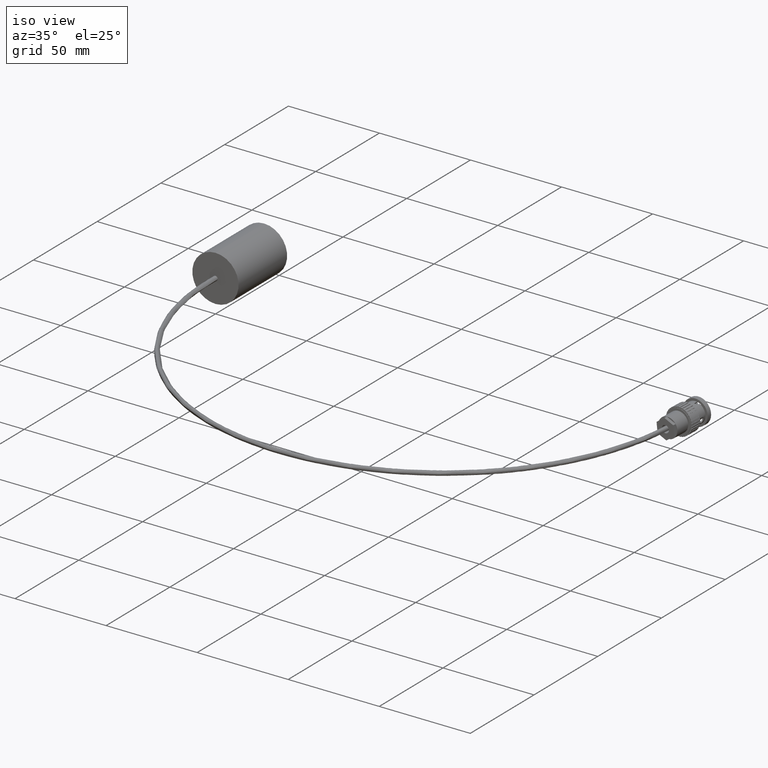
[diagram: clean part render]
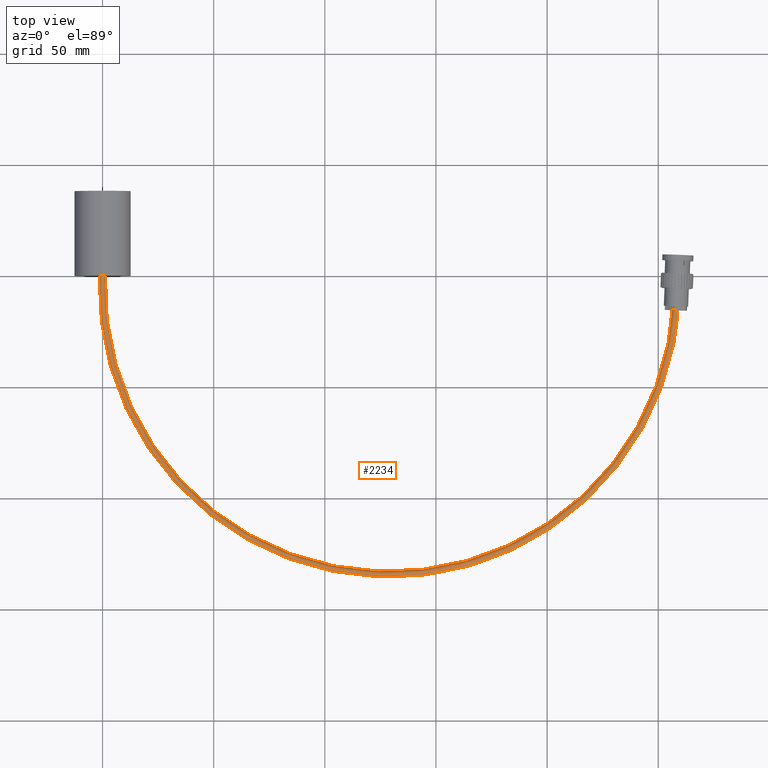
[diagram: tour spotlight — one face highlighted and labeled with its STEP entity id]
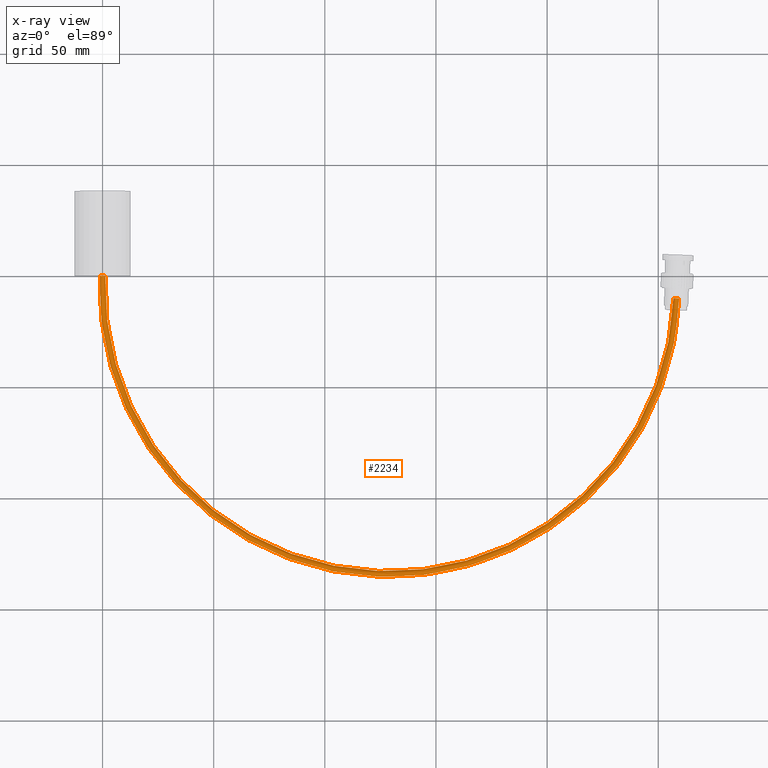
[diagram: x-ray of the same camera — body ghosted, this tour face saturated]
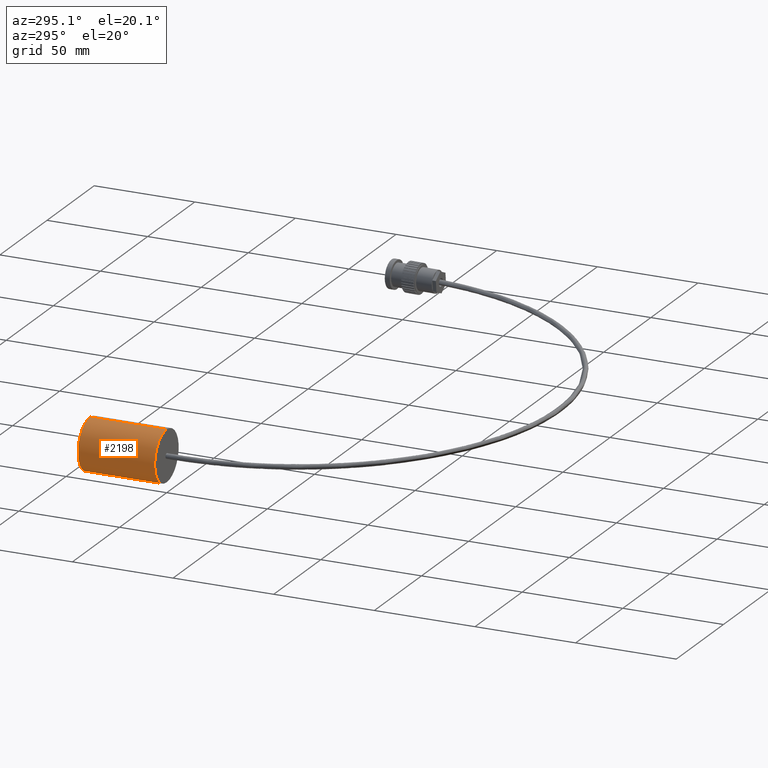
[diagram: tour spotlight — one face highlighted and labeled with its STEP entity id]
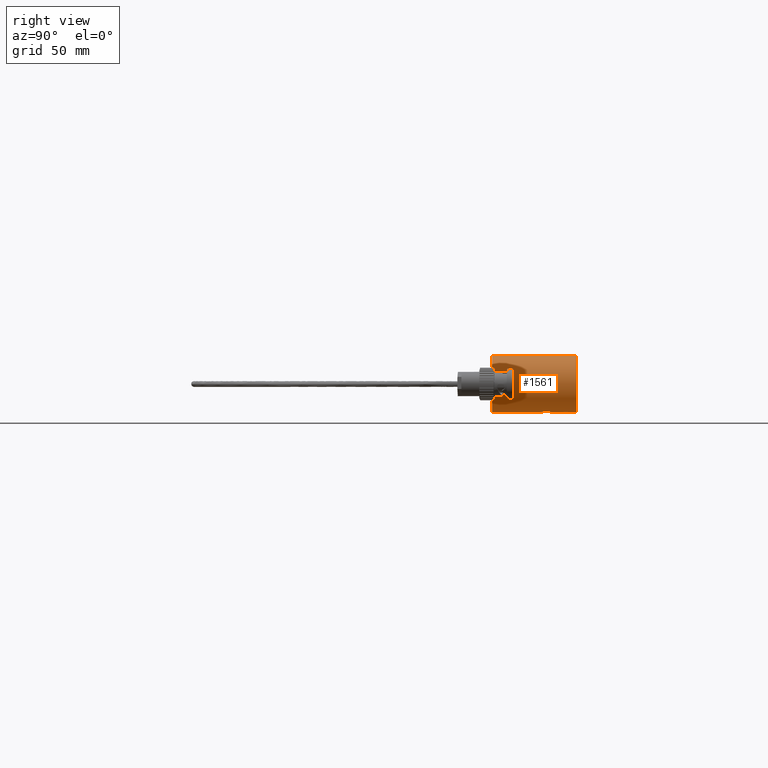
[diagram: tour spotlight — one face highlighted and labeled with its STEP entity id]
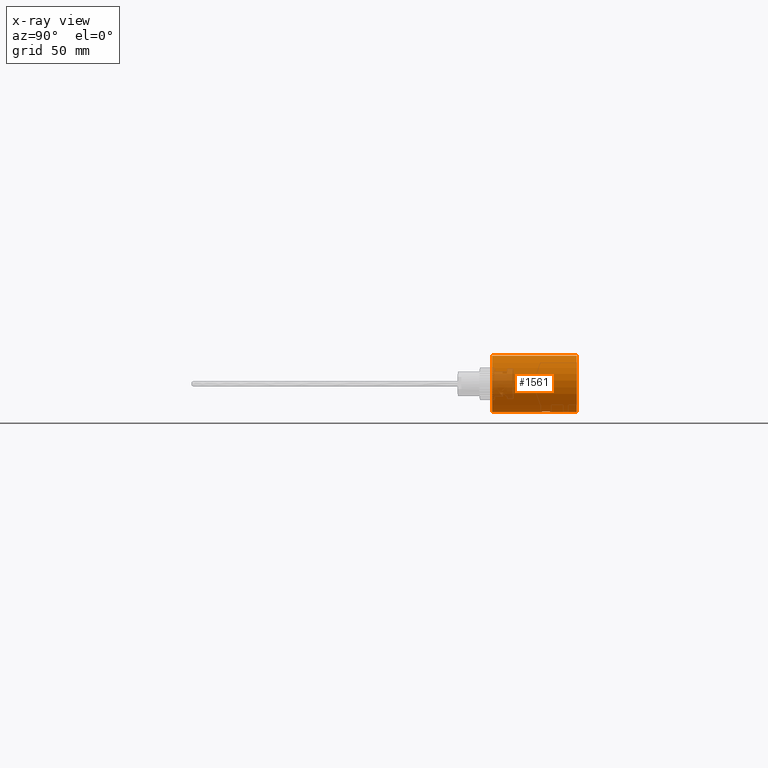
[diagram: x-ray of the same camera — body ghosted, this tour face saturated]
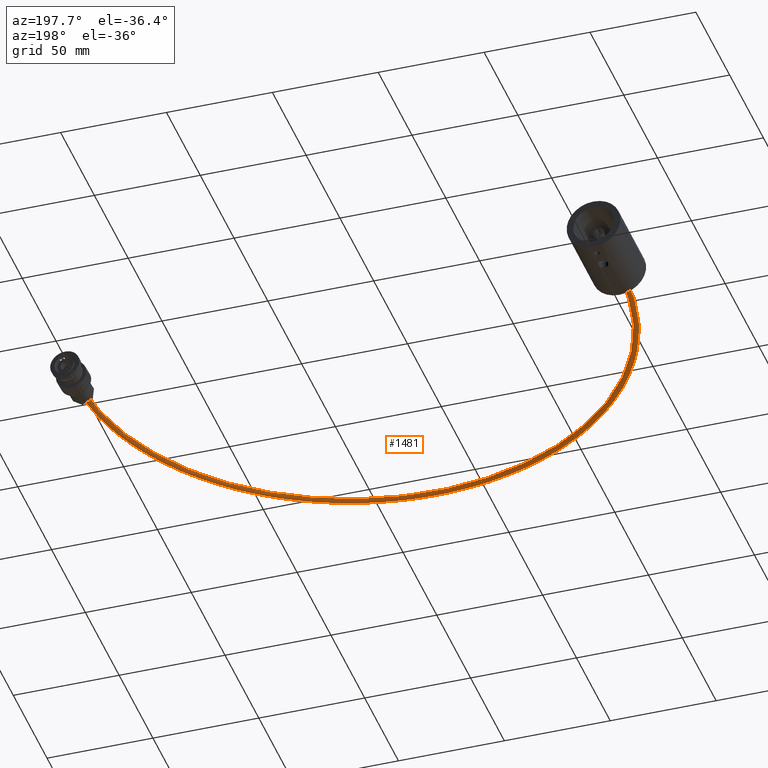
[diagram: tour spotlight — one face highlighted and labeled with its STEP entity id]
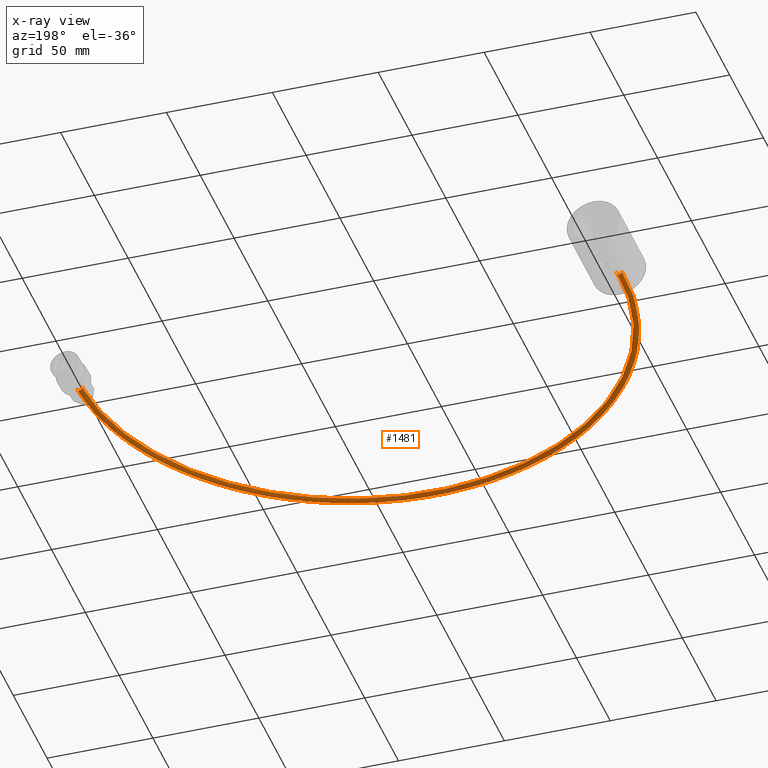
[diagram: x-ray of the same camera — body ghosted, this tour face saturated]
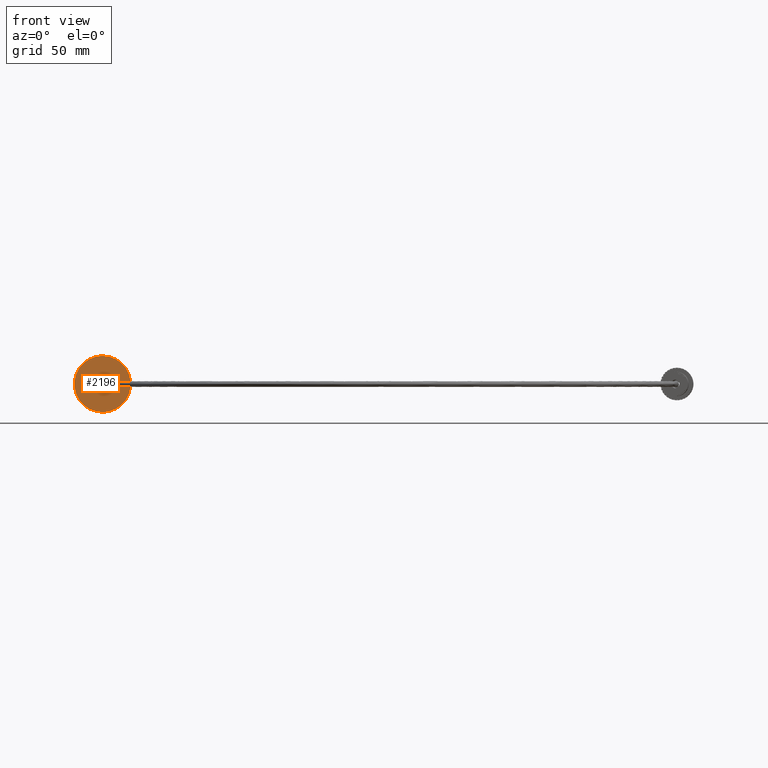
[diagram: tour spotlight — one face highlighted and labeled with its STEP entity id]
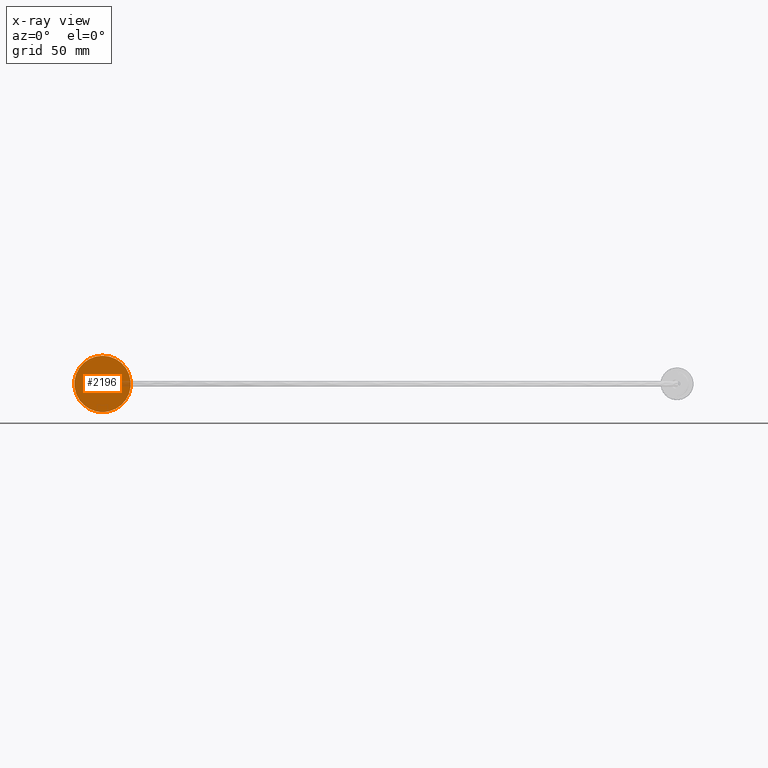
[diagram: x-ray of the same camera — body ghosted, this tour face saturated]
A machine part: a face-by-face anatomy tour. The part has 348 B-rep faces; the first image is the clean iso view, then the 5 largest visible faces are spotlighted one at a time (largest first), each with its STEP entity span.

Face 1 — top view, entity #2234. An x-ray twin of the same camera follows (body ghosted, this face saturated) — the face is partly hidden behind the body. In plain terms, the highlighted face is a freeform B-spline surface patch.
Definition (entity closure, byte-faithful):
#1096 = FACE_OUTER_BOUND ( 'NONE', #9802, .T. ) ;
#1222 = AXIS2_PLACEMENT_3D ( 'NONE', #7463, #7462, #7461 ) ;
#1851 = CARTESIAN_POINT ( 'NONE',  ( -3.689970169806873500E-014, 1.213184216936841500E-031, 0.05000000000000000300 ) ) ;
#1853 = CARTESIAN_POINT ( 'NONE',  ( 10.21184235773133200, -0.3992545633185433700, 0.0000000000000000000 ) ) ;
#1863 = CARTESIAN_POINT ( 'NONE',  ( 10.11191869981899100, -0.3953478269033676700, -6.123233995736788700E-018 ) ) ;
#1867 = CARTESIAN_POINT ( 'NONE',  ( 0.04996182895616743700, -0.001953368207589857700, -6.123233995736788700E-018 ) ) ;
#2234 = ADVANCED_FACE ( 'NONE', ( #1096 ), #8591, .T. ) ;
#2907 = CARTESIAN_POINT ( 'NONE',  ( 0.04996182895616797800, -0.001953368207590107000, -1.005323956158381300E-015 ) ) ;
#3709 = ORIENTED_EDGE ( 'NONE', *, *, #4008, .T. ) ;
#3713 = ORIENTED_EDGE ( 'NONE', *, *, #4049, .F. ) ;
#3717 = ORIENTED_EDGE ( 'NONE', *, *, #3963, .T. ) ;
#3719 = ORIENTED_EDGE ( 'NONE', *, *, #4007, .T. ) ;
#3782 = ORIENTED_EDGE ( 'NONE', *, *, #4009, .T. ) ;
#3963 = EDGE_CURVE ( 'NONE', #6196, #9923, #10295, .T. ) ;
#4007 = EDGE_CURVE ( 'NONE', #9921, #6196, #8545, .T. ) ;
#4008 = EDGE_CURVE ( 'NONE', #9937, #9921, #8587, .T. ) ;
#4009 = EDGE_CURVE ( 'NONE', #9923, #9933, #8560, .T. ) ;
#4049 = EDGE_CURVE ( 'NONE', #9937, #9933, #6914, .T. ) ;
#4193 = CARTESIAN_POINT ( 'NONE',  ( 10.13124422385636300, -0.3961034010094055000, 0.04004410684354360600 ) ) ;
#4195 = CARTESIAN_POINT ( 'NONE',  ( 10.13675244956736400, -0.3963187572765575200, 0.04370940683139485500 ) ) ;
#4196 = CARTESIAN_POINT ( 'NONE',  ( 10.21184235773133200, -0.3992545633185433700, 0.0000000000000000000 ) ) ;
#4200 = CARTESIAN_POINT ( 'NONE',  ( 10.12191195038458200, -0.3957385351370955000, 0.03071838566602326900 ) ) ;
#4203 = CARTESIAN_POINT ( 'NONE',  ( 10.14884971689403100, -0.3967917266991810000, 0.04871176631965182200 ) ) ;
#4204 = CARTESIAN_POINT ( 'NONE',  ( 10.19259918682006800, -0.3985022089901174000, 0.03996839096293985900 ) ) ;
#4205 = CARTESIAN_POINT ( 'NONE',  ( 10.18702611231907600, -0.3982843173160896500, 0.04369371960717231800 ) ) ;
#4209 = CARTESIAN_POINT ( 'NONE',  ( 10.19951280318846900, -0.3987725121134346700, 0.03304973244076160600 ) ) ;
#4212 = CARTESIAN_POINT ( 'NONE',  ( 10.21184235773133200, -0.3992545633185442500, 0.006605876149495982500 ) ) ;
#4214 = CARTESIAN_POINT ( 'NONE',  ( 10.11191869981899100, -0.3953478269033677300, 0.006605876149496099600 ) ) ;
#4215 = CARTESIAN_POINT ( 'NONE',  ( 10.20524774945981200, -0.3989967325223493500, 0.02504164073028235900 ) ) ;
#4217 = CARTESIAN_POINT ( 'NONE',  ( 10.16843022623807300, -0.3975572700197541600, 0.04999558216815964300 ) ) ;
#4220 = CARTESIAN_POINT ( 'NONE',  ( 10.17500404069510700, -0.3978142878357796600, 0.04868180568638949500 ) ) ;
#4221 = CARTESIAN_POINT ( 'NONE',  ( 10.20678208413882600, -0.3990567207302351300, 0.02216996442717281800 ) ) ;
#4223 = CARTESIAN_POINT ( 'NONE',  ( 10.11191869981899100, -0.3953478269033676700, -6.123233995736788700E-018 ) ) ;
#4226 = CARTESIAN_POINT ( 'NONE',  ( 10.11824258299714300, -0.3955950731032523700, 0.02521577510486263500 ) ) ;
#4227 = CARTESIAN_POINT ( 'NONE',  ( 10.11322046441740400, -0.3953987222695586900, 0.01309943555867122000 ) ) ;
#4228 = CARTESIAN_POINT ( 'NONE',  ( 10.21054305709933300, -0.3992037642865690100, 0.01308793473181327600 ) ) ;
#4229 = CARTESIAN_POINT ( 'NONE',  ( 10.15539835330318900, -0.3970477601237362700, 0.05000439500089588800 ) ) ;
#4247 = CARTESIAN_POINT ( 'NONE',  ( 10.20162276960965300, -0.3988550059174512100, 0.03047645669890766000 ) ) ;
#5801 = CARTESIAN_POINT ( 'NONE',  ( 10.21184235773133200, -0.3992545633185443100, 0.0000000000000000000 ) ) ;
#5802 = CARTESIAN_POINT ( 'NONE',  ( 9.810634426205201200, -10.66105875000604500, 0.0000000000000000000 ) ) ;
#5803 = CARTESIAN_POINT ( 'NONE',  ( -0.4511697604823016200, -10.25985081847991700, 0.0000000000000000000 ) ) ;
#5804 = CARTESIAN_POINT ( 'NONE',  ( -0.04996182895617234900, 0.001953368207585599300, 0.0000000000000000000 ) ) ;
#5805 = CARTESIAN_POINT ( 'NONE',  ( 10.21184235773133200, -0.3992545633185443100, 0.1000000000000023200 ) ) ;
#5806 = CARTESIAN_POINT ( 'NONE',  ( 9.810634426205201200, -10.66105875000604500, 0.1000000000000023200 ) ) ;
#5808 = CARTESIAN_POINT ( 'NONE',  ( -0.4511697604823016200, -10.25985081847991700, 0.1000000000000023200 ) ) ;
#5809 = CARTESIAN_POINT ( 'NONE',  ( -0.04996182895617234900, 0.001953368207585599300, 0.1000000000000023200 ) ) ;
#5810 = CARTESIAN_POINT ( 'NONE',  ( 10.11191869981899000, -0.3953478269033685000, 0.1000000000000013200 ) ) ;
#5811 = CARTESIAN_POINT ( 'NONE',  ( 9.718524241123212400, -10.45730469776618700, 0.1000000000000013200 ) ) ;
#5812 = CARTESIAN_POINT ( 'NONE',  ( -0.3434326297396076400, -10.06391023907040800, 0.1000000000000013200 ) ) ;
#5813 = CARTESIAN_POINT ( 'NONE',  ( 0.04996182895616998300, -0.001953368207590185100, 0.1000000000000013200 ) ) ;
#5814 = CARTESIAN_POINT ( 'NONE',  ( 10.11191869981899100, -0.3953478269033685600, -1.005323956158381300E-015 ) ) ;
#5815 = CARTESIAN_POINT ( 'NONE',  ( 9.718524241123212400, -10.45730469776619200, -1.005323956158381300E-015 ) ) ;
#5817 = CARTESIAN_POINT ( 'NONE',  ( -0.3434326297396098100, -10.06391023907041000, -1.005323956158381300E-015 ) ) ;
#6196 = VERTEX_POINT ( 'NONE', #9244 ) ;
#6565 = AXIS2_PLACEMENT_3D ( 'NONE', #10698, #10699, #10700 ) ;
#6914 = CIRCLE ( 'NONE', #6565, 5.034822123750653400 ) ;
#7461 = DIRECTION ( 'NONE',  ( 1.000000000000000000, 0.0000000000000000000, 0.0000000000000000000 ) ) ;
#7462 = DIRECTION ( 'NONE',  ( 0.0000000000000000000, 0.0000000000000000000, 1.000000000000000000 ) ) ;
#7463 = CARTESIAN_POINT ( 'NONE',  ( 5.080940264387579400, -0.1986505975554790400, 0.0000000000000000000 ) ) ;
#8545 = B_SPLINE_CURVE_WITH_KNOTS ( 'NONE', 3,
 ( #8864, #8884, #8871, #8863, #8861, #8860, #8859, #8857, #8856, #8854, #8853, #8851 ),
 .UNSPECIFIED., .F., .F.,
 ( 4, 2, 2, 2, 2, 4 ),
 ( -0.001984719578268271200, -0.001488539683701203600, -0.001240449736417669700, -0.0009923597891341358100, -0.0004961798945670680100, 0.0000000000000000000 ),
 .UNSPECIFIED. ) ;
#8560 = B_SPLINE_CURVE_WITH_KNOTS ( 'NONE', 3,
 ( #4196, #4212, #4228, #4221, #4215, #4247, #4209, #4204, #4205, #4220, #4217, #4229, #4203, #4195, #4193, #4200, #4226, #4227, #4214, #4223 ),
 .UNSPECIFIED., .F., .F.,
 ( 4, 2, 2, 2, 2, 2, 2, 2, 2, 4 ),
 ( 0.003969785577516006400, 0.004466008774705561500, 0.004714120373300306900, 0.004962231971895052400, 0.005458455169084544200, 0.005954678366274035100, 0.006450901563463526000, 0.006947124760653017800, 0.007443347957842509600, 0.007939571155032000600 ),
 .UNSPECIFIED. ) ;
#8587 = B_SPLINE_CURVE_WITH_KNOTS ( 'NONE', 3,
 ( #8870, #8877, #8846, #8845, #8844, #8842, #8841, #8840, #8838, #8837, #8835, #8834 ),
 .UNSPECIFIED., .F., .F.,
 ( 4, 2, 2, 2, 2, 4 ),
 ( 0.001983942317850127100, 0.002479927897312619400, 0.002727920687043865800, 0.002975913476775112200, 0.003471899056237604500, 0.003967884635700097200 ),
 .UNSPECIFIED. ) ;
#8591 =( BOUNDED_SURFACE ( )  B_SPLINE_SURFACE ( 3, 3, ( 
 ( #2907, #5817, #5815, #5814 ),
 ( #5813, #5812, #5811, #5810 ),
 ( #5809, #5808, #5806, #5805 ),
 ( #5804, #5803, #5802, #5801 ) ),
 .UNSPECIFIED., .F., .F., .F. ) 
 B_SPLINE_SURFACE_WITH_KNOTS ( ( 4, 4 ),
 ( 4, 4 ),
 ( 0.0000000000000000000, 1.000000000000000000 ),
 ( 0.0000000000000000000, 1.000000000000000000 ),
 .UNSPECIFIED. ) 
 GEOMETRIC_REPRESENTATION_ITEM ( )  RATIONAL_B_SPLINE_SURFACE ( (
 ( 1.000000000000000000, 0.3333333333333334300, 0.3333333333333334300, 1.000000000000000000),
 ( 0.3333333333333267100, 0.1111111111111089400, 0.1111111111111089400, 0.3333333333333267100),
 ( 0.3333333333333267100, 0.1111111111111089400, 0.1111111111111089400, 0.3333333333333267100),
 ( 1.000000000000000000, 0.3333333333333334300, 0.3333333333333334300, 1.000000000000000000) ) ) 
 REPRESENTATION_ITEM ( '' )  SURFACE ( )  );
#8834 = CARTESIAN_POINT ( 'NONE',  ( -3.689970169806873500E-014, 1.213184216936841500E-031, 0.05000000000000000300 ) ) ;
#8835 = CARTESIAN_POINT ( 'NONE',  ( 0.006597672260131861100, -0.0002579505896075873700, 0.05000000000000848900 ) ) ;
#8837 = CARTESIAN_POINT ( 'NONE',  ( 0.01315368092467612800, -0.0005142722487934665900, 0.04867323482785110300 ) ) ;
#8838 = CARTESIAN_POINT ( 'NONE',  ( 0.02516721974780649800, -0.0009839681203819986400, 0.04368077887726824800 ) ) ;
#8840 = CARTESIAN_POINT ( 'NONE',  ( 0.03073573170077791700, -0.001201681411503735600, 0.03995475612073524900 ) ) ;
#8841 = CARTESIAN_POINT ( 'NONE',  ( 0.03764359769444963100, -0.001471759711202356600, 0.03303666781754554400 ) ) ;
#8842 = CARTESIAN_POINT ( 'NONE',  ( 0.03975172471688592800, -0.001554181599856461600, 0.03046389063484404900 ) ) ;
#8844 = CARTESIAN_POINT ( 'NONE',  ( 0.04337335580146741600, -0.001695777277357370900, 0.02503078258802644800 ) ) ;
#8845 = CARTESIAN_POINT ( 'NONE',  ( 0.04490629935936416700, -0.001755711096286392100, 0.02216011734622811200 ) ) ;
#8846 = CARTESIAN_POINT ( 'NONE',  ( 0.04866384370164521900, -0.001902620603207216000, 0.01308153387959971200 ) ) ;
#8851 = CARTESIAN_POINT ( 'NONE',  ( -0.05003782781375295400, -1.434220196673738200E-015, 0.0000000000000000000 ) ) ;
#8853 = CARTESIAN_POINT ( 'NONE',  ( -0.05003782770462714800, -1.434220196673738400E-015, 0.006605328942337134300 ) ) ;
#8854 = CARTESIAN_POINT ( 'NONE',  ( -0.04870896172209734200, -8.195543980992793600E-016, 0.01316867915984429000 ) ) ;
#8856 = CARTESIAN_POINT ( 'NONE',  ( -0.04370980947597225000, -8.195543980992790600E-016, 0.02519392691144870700 ) ) ;
#8857 = CARTESIAN_POINT ( 'NONE',  ( -0.03997933257881723700, -4.609993489308442100E-016, 0.03076667479901628800 ) ) ;
#8859 = CARTESIAN_POINT ( 'NONE',  ( -0.03305448466909486500, -4.609993489308445000E-016, 0.03767872832769205600 ) ) ;
#8860 = CARTESIAN_POINT ( 'NONE',  ( -0.03047942104906812400, 5.122214988120497200E-017, 0.03978786154097169200 ) ) ;
#8861 = CARTESIAN_POINT ( 'NONE',  ( -0.02504263635440175500, 5.122214988120487400E-017, 0.04341057960951389500 ) ) ;
#8863 = CARTESIAN_POINT ( 'NONE',  ( -0.02217016109395995200, 1.485442346554943200E-015, 0.04494390988193307900 ) ) ;
#8864 = CARTESIAN_POINT ( 'NONE',  ( -3.689970169806873500E-014, 1.213184216936841500E-031, 0.05000000000000000300 ) ) ;
#8870 = CARTESIAN_POINT ( 'NONE',  ( 0.04996182895616743700, -0.001953368207589857700, -6.123233995736788700E-018 ) ) ;
#8871 = CARTESIAN_POINT ( 'NONE',  ( -0.01308627931434669600, 1.485442346554943200E-015, 0.04870222279310604900 ) ) ;
#8877 = CARTESIAN_POINT ( 'NONE',  ( 0.04996182895616759600, -0.001953368207589597900, 0.006602712909073462500 ) ) ;
#8884 = CARTESIAN_POINT ( 'NONE',  ( -0.006605186544468007900, 3.073328992872297800E-016, 0.04999999999999180800 ) ) ;
#9244 = CARTESIAN_POINT ( 'NONE',  ( -0.05003782781375295400, -1.434220196673738200E-015, 0.0000000000000000000 ) ) ;
#9802 = EDGE_LOOP ( 'NONE', ( #3713, #3709, #3719, #3717, #3782 ) ) ;
#9921 = VERTEX_POINT ( 'NONE', #1851 ) ;
#9923 = VERTEX_POINT ( 'NONE', #1853 ) ;
#9933 = VERTEX_POINT ( 'NONE', #1863 ) ;
#9937 = VERTEX_POINT ( 'NONE', #1867 ) ;
#10295 = CIRCLE ( 'NONE', #1222, 5.134822123750653100 ) ;
#10698 = CARTESIAN_POINT ( 'NONE',  ( 5.080940264387579400, -0.1986505975554790400, -6.123233995736788700E-018 ) ) ;
#10699 = DIRECTION ( 'NONE',  ( 0.0000000000000000000, 0.0000000000000000000, 1.000000000000000000 ) ) ;
#10700 = DIRECTION ( 'NONE',  ( 1.000000000000000000, 0.0000000000000000000, 0.0000000000000000000 ) ) ;

Face 2 — auxiliary view, entity #2198. In plain terms, the highlighted cylindrical surface (edge-blend (fillet) strip) has radius 12.7 mm, axis along (-0, -1, -0).
Definition (entity closure, byte-faithful):
#1143 = AXIS2_PLACEMENT_3D ( 'NONE', #2857, #2859, #2867 ) ;
#1819 = CARTESIAN_POINT ( 'NONE',  ( 0.0000000000000000000, 0.8535241775174051700, -0.5000000000000000000 ) ) ;
#1821 = CARTESIAN_POINT ( 'NONE',  ( 6.123233995736766000E-017, 1.500000000000000200, 0.5000000000000000000 ) ) ;
#1824 = CARTESIAN_POINT ( 'NONE',  ( 0.0000000000000000000, 0.0000000000000000000, -0.5000000000000000000 ) ) ;
#1826 = CARTESIAN_POINT ( 'NONE',  ( 0.0000000000000000000, 1.500000000000000200, -0.5000000000000000000 ) ) ;
#1828 = CARTESIAN_POINT ( 'NONE',  ( 6.123233995736766000E-017, 0.0000000000000000000, 0.5000000000000000000 ) ) ;
#1834 = CARTESIAN_POINT ( 'NONE',  ( 0.0000000000000000000, 1.253247980642432600, -0.5000000000000000000 ) ) ;
#1835 = CARTESIAN_POINT ( 'NONE',  ( 0.0000000000000000000, 1.053524177517405300, -0.5000000000000000000 ) ) ;
#1859 = CARTESIAN_POINT ( 'NONE',  ( -0.04999999999999987800, 1.303247980642432600, -0.4974937185533099800 ) ) ;
#1871 = CARTESIAN_POINT ( 'NONE',  ( -0.09999999999999997800, 0.9535241775174052600, -0.4898979485566356000 ) ) ;
#2198 = ADVANCED_FACE ( 'NONE', ( #4173 ), #4169, .T. ) ;
#2857 = CARTESIAN_POINT ( 'NONE',  ( 0.0000000000000000000, 0.0000000000000000000, 0.0000000000000000000 ) ) ;
#2859 = DIRECTION ( 'NONE',  ( -0.0000000000000000000, -1.000000000000000000, -0.0000000000000000000 ) ) ;
#2867 = DIRECTION ( 'NONE',  ( 0.0000000000000000000, 0.0000000000000000000, -1.000000000000000000 ) ) ;
#3634 = ORIENTED_EDGE ( 'NONE', *, *, #4006, .F. ) ;
#3635 = ORIENTED_EDGE ( 'NONE', *, *, #4035, .T. ) ;
#3638 = ORIENTED_EDGE ( 'NONE', *, *, #4018, .T. ) ;
#3639 = ORIENTED_EDGE ( 'NONE', *, *, #4498, .T. ) ;
#3644 = ORIENTED_EDGE ( 'NONE', *, *, #4033, .T. ) ;
#3645 = ORIENTED_EDGE ( 'NONE', *, *, #4014, .T. ) ;
#3646 = ORIENTED_EDGE ( 'NONE', *, *, #4518, .T. ) ;
#3650 = ORIENTED_EDGE ( 'NONE', *, *, #4031, .T. ) ;
#3653 = ORIENTED_EDGE ( 'NONE', *, *, #4510, .T. ) ;
#3654 = ORIENTED_EDGE ( 'NONE', *, *, #4025, .F. ) ;
#4006 = EDGE_CURVE ( 'NONE', #9898, #9894, #6869, .T. ) ;
#4014 = EDGE_CURVE ( 'NONE', #9929, #9904, #8563, .T. ) ;
#4018 = EDGE_CURVE ( 'NONE', #9941, #9889, #8574, .T. ) ;
#4025 = EDGE_CURVE ( 'NONE', #9891, #9898, #6885, .T. ) ;
#4031 = EDGE_CURVE ( 'NONE', #9896, #4278, #6892, .T. ) ;
#4033 = EDGE_CURVE ( 'NONE', #9904, #9905, #6896, .T. ) ;
#4035 = EDGE_CURVE ( 'NONE', #9889, #9894, #6886, .T. ) ;
#4169 = CYLINDRICAL_SURFACE ( 'NONE', #1143, 0.5000000000000000000 ) ;
#4173 = FACE_OUTER_BOUND ( 'NONE', #9773, .T. ) ;
#4187 = CARTESIAN_POINT ( 'NONE',  ( -0.03767019124706205000, 1.270209078838791600, -0.4985842816260046000 ) ) ;
#4190 = CARTESIAN_POINT ( 'NONE',  ( 0.0000000000000000000, 1.253247980642432600, -0.5000000000000000000 ) ) ;
#4191 = CARTESIAN_POINT ( 'NONE',  ( -0.04340290173447948500, 1.278211058688923000, -0.4981159453178990400 ) ) ;
#4192 = CARTESIAN_POINT ( 'NONE',  ( -0.03076202508601993300, 1.263296169963435100, -0.4990741574005250800 ) ) ;
#4194 = CARTESIAN_POINT ( 'NONE',  ( -0.04493714613727863000, 1.281080895915587500, -0.4979781506404334400 ) ) ;
#4206 = CARTESIAN_POINT ( 'NONE',  ( -0.03977855172359263300, 1.272779535282478400, -0.4984184724523064700 ) ) ;
#4222 = CARTESIAN_POINT ( 'NONE',  ( -0.04999999999999987800, 1.303247980642432600, -0.4974937185533099800 ) ) ;
#4233 = CARTESIAN_POINT ( 'NONE',  ( -0.02519242246028144400, 1.259570744542050300, -0.4994011611672341000 ) ) ;
#4235 = CARTESIAN_POINT ( 'NONE',  ( -0.04869863161670525500, 1.290157897691530400, -0.4976291648924708300 ) ) ;
#4242 = CARTESIAN_POINT ( 'NONE',  ( -0.006607105239215367400, 1.253247980642432600, -0.5000000000000002200 ) ) ;
#4244 = CARTESIAN_POINT ( 'NONE',  ( -0.04999999999999987800, 1.296640823601158600, -0.4974937185533100400 ) ) ;
#4245 = CARTESIAN_POINT ( 'NONE',  ( -0.01317166078304096500, 1.254576978443974900, -0.4998626664163023400 ) ) ;
#4278 = VERTEX_POINT ( 'NONE', #10753 ) ;
#4498 = EDGE_CURVE ( 'NONE', #9905, #9941, #8589, .T. ) ;
#4510 = EDGE_CURVE ( 'NONE', #9891, #9896, #6954, .T. ) ;
#4518 = EDGE_CURVE ( 'NONE', #4278, #9929, #8559, .T. ) ;
#5462 = CARTESIAN_POINT ( 'NONE',  ( 6.123233995736766000E-017, 0.0000000000000000000, 0.5000000000000000000 ) ) ;
#5466 = CARTESIAN_POINT ( 'NONE',  ( -0.05042236398975646900, 0.8661918333100161500, -0.4975970399557523300 ) ) ;
#5471 = CARTESIAN_POINT ( 'NONE',  ( -0.09934900369238598700, 0.9403966597593186300, -0.4900321038650187800 ) ) ;
#5474 = CARTESIAN_POINT ( 'NONE',  ( -0.06154176062599700500, 0.8736388224218677400, -0.4962850117806398800 ) ) ;
#5476 = CARTESIAN_POINT ( 'NONE',  ( -0.09999999999999997800, 0.9535241775174052600, -0.4898979485566356000 ) ) ;
#5478 = CARTESIAN_POINT ( 'NONE',  ( -0.09999999999999997800, 0.9469034162282750100, -0.4898979485566356500 ) ) ;
#5479 = CARTESIAN_POINT ( 'NONE',  ( -0.07953607496198238100, 0.8925602920971289500, -0.4936471619846525300 ) ) ;
#5480 = CARTESIAN_POINT ( 'NONE',  ( -0.09680150916035403000, 0.9276007502471442800, -0.4905416956562651500 ) ) ;
#5483 = CARTESIAN_POINT ( 'NONE',  ( -0.02639137889377738200, 0.8561956192461636100, -0.4994484198424569100 ) ) ;
#5484 = DIRECTION ( 'NONE',  ( -0.0000000000000000000, -1.000000000000000000, -0.0000000000000000000 ) ) ;
#5487 = CARTESIAN_POINT ( 'NONE',  ( -0.01324112789174193000, 0.8535241775174053900, -0.5000000000000001100 ) ) ;
#5491 = CARTESIAN_POINT ( 'NONE',  ( 0.0000000000000000000, 0.8535241775174051700, -0.5000000000000000000 ) ) ;
#5500 = CARTESIAN_POINT ( 'NONE',  ( -0.07532839382948458600, 0.8874341052826740800, -0.4943148626005840500 ) ) ;
#5502 = CARTESIAN_POINT ( 'NONE',  ( -0.08678427422060983100, 0.9034135769033969600, -0.4924246109851352900 ) ) ;
#5505 = CARTESIAN_POINT ( 'NONE',  ( -0.08985345385315093900, 0.9091481195780487500, -0.4918667281463447400 ) ) ;
#5508 = CARTESIAN_POINT ( 'NONE',  ( -0.09487297196836352900, 0.9212442011006298800, -0.4909232532857050700 ) ) ;
#6557 = AXIS2_PLACEMENT_3D ( 'NONE', #8868, #8867, #8865 ) ;
#6576 = AXIS2_PLACEMENT_3D ( 'NONE', #10099, #10100, #10101 ) ;
#6869 = CIRCLE ( 'NONE', #6557, 0.5000000000000000000 ) ;
#6885 = LINE ( 'NONE', #5462, #6889 ) ;
#6886 = LINE ( 'NONE', #10638, #6900 ) ;
#6889 = VECTOR ( 'NONE', #5484, 39.37007874015748100 ) ;
#6892 = LINE ( 'NONE', #10605, #6897 ) ;
#6896 = LINE ( 'NONE', #10625, #6898 ) ;
#6897 = VECTOR ( 'NONE', #10623, 39.37007874015748100 ) ;
#6898 = VECTOR ( 'NONE', #10637, 39.37007874015748100 ) ;
#6900 = VECTOR ( 'NONE', #10651, 39.37007874015748100 ) ;
#6954 = CIRCLE ( 'NONE', #6576, 0.5000000000000000000 ) ;
#8559 = B_SPLINE_CURVE_WITH_KNOTS ( 'NONE', 3,
 ( #10104, #10111, #10134, #10135, #10136, #10137, #10138, #10140, #10141, #10142, #10143, #10144 ),
 .UNSPECIFIED., .F., .F.,
 ( 4, 2, 2, 2, 2, 4 ),
 ( -0.001985165446214496000, -0.001488874084660873200, -0.001240728403884065900, -0.0009925827231072586300, -0.0004962913615536293200, 0.0000000000000000000 ),
 .UNSPECIFIED. ) ;
#8563 = B_SPLINE_CURVE_WITH_KNOTS ( 'NONE', 3,
 ( #4222, #4244, #4235, #4194, #4191, #4206, #4187, #4192, #4233, #4245, #4242, #4190 ),
 .UNSPECIFIED., .F., .F.,
 ( 4, 2, 2, 2, 2, 4 ),
 ( 0.0000000000000000000, 0.0004962950762401093900, 0.0007444426143601639800, 0.0009925901524802185600, 0.001488885228720312600, 0.001985180304960406300 ),
 .UNSPECIFIED. ) ;
#8574 = B_SPLINE_CURVE_WITH_KNOTS ( 'NONE', 3,
 ( #5476, #5478, #5471, #5480, #5508, #5505, #5502, #5479, #5500, #5474, #5466, #5483, #5487, #5491 ),
 .UNSPECIFIED., .F., .F.,
 ( 4, 2, 2, 2, 2, 2, 4 ),
 ( 0.0000000000000000000, 0.0004972404828668644700, 0.0009944809657337289400, 0.001491721448600593400, 0.001988961931467457900, 0.002983442897201179000, 0.003977923862934900100 ),
 .UNSPECIFIED. ) ;
#8589 = B_SPLINE_CURVE_WITH_KNOTS ( 'NONE', 3,
 ( #10050, #10049, #10054, #10055, #10056, #10057, #10058, #10059, #10060, #10061, #10062, #10063, #10064, #10065 ),
 .UNSPECIFIED., .F., .F.,
 ( 4, 2, 2, 2, 2, 2, 4 ),
 ( -0.003977828247745039900, -0.003480599716776911700, -0.002983371185808783600, -0.002486142654840655900, -0.001988914123872527700, -0.0009944570619362640800, 0.0000000000000000000 ),
 .UNSPECIFIED. ) ;
#8865 = DIRECTION ( 'NONE',  ( 0.0000000000000000000, 0.0000000000000000000, -1.000000000000000000 ) ) ;
#8867 = DIRECTION ( 'NONE',  ( -0.0000000000000000000, -1.000000000000000000, -0.0000000000000000000 ) ) ;
#8868 = CARTESIAN_POINT ( 'NONE',  ( 0.0000000000000000000, 0.0000000000000000000, 0.0000000000000000000 ) ) ;
#9773 = EDGE_LOOP ( 'NONE', ( #3654, #3653, #3650, #3646, #3645, #3644, #3639, #3638, #3635, #3634 ) ) ;
#9889 = VERTEX_POINT ( 'NONE', #1819 ) ;
#9891 = VERTEX_POINT ( 'NONE', #1821 ) ;
#9894 = VERTEX_POINT ( 'NONE', #1824 ) ;
#9896 = VERTEX_POINT ( 'NONE', #1826 ) ;
#9898 = VERTEX_POINT ( 'NONE', #1828 ) ;
#9904 = VERTEX_POINT ( 'NONE', #1834 ) ;
#9905 = VERTEX_POINT ( 'NONE', #1835 ) ;
#9929 = VERTEX_POINT ( 'NONE', #1859 ) ;
#9941 = VERTEX_POINT ( 'NONE', #1871 ) ;
#10049 = CARTESIAN_POINT ( 'NONE',  ( -0.006620707461185678200, 1.053524177517405300, -0.5000000000000001100 ) ) ;
#10050 = CARTESIAN_POINT ( 'NONE',  ( 0.0000000000000000000, 1.053524177517405300, -0.5000000000000000000 ) ) ;
#10054 = CARTESIAN_POINT ( 'NONE',  ( -0.01312755555047963700, 1.052873189162194700, -0.4998686488172079400 ) ) ;
#10055 = CARTESIAN_POINT ( 'NONE',  ( -0.02592384586209917800, 1.050325587864804100, -0.4993685542770891500 ) ) ;
#10056 = CARTESIAN_POINT ( 'NONE',  ( -0.03228069609948095600, 1.048396938790678400, -0.4989937443176607500 ) ) ;
#10057 = CARTESIAN_POINT ( 'NONE',  ( -0.04437762999807371600, 1.043376891043690200, -0.4980636768171116100 ) ) ;
#10058 = CARTESIAN_POINT ( 'NONE',  ( -0.05011252523770634600, 1.040307362762179900, -0.4975123645404587700 ) ) ;
#10059 = CARTESIAN_POINT ( 'NONE',  ( -0.06096612321433146600, 1.033058561573256600, -0.4962992543582481800 ) ) ;
#10060 = CARTESIAN_POINT ( 'NONE',  ( -0.06609249557250733400, 1.028850453620845600, -0.4956342987376224900 ) ) ;
#10061 = CARTESIAN_POINT ( 'NONE',  ( -0.07988753069094359200, 1.015063155495253600, -0.4936641435881797300 ) ) ;
#10062 = CARTESIAN_POINT ( 'NONE',  ( -0.08733333858263113400, 1.003944574083093500, -0.4923400711369097000 ) ) ;
#10063 = CARTESIAN_POINT ( 'NONE',  ( -0.09732852307995418200, 0.9799152179081245300, -0.4904620436589978700 ) ) ;
#10064 = CARTESIAN_POINT ( 'NONE',  ( -0.09999999999999999200, 0.9667653818163984800, -0.4898979485566358200 ) ) ;
#10065 = CARTESIAN_POINT ( 'NONE',  ( -0.09999999999999997800, 0.9535241775174052600, -0.4898979485566356000 ) ) ;
#10099 = CARTESIAN_POINT ( 'NONE',  ( 0.0000000000000000000, 1.500000000000000200, 0.0000000000000000000 ) ) ;
#10100 = DIRECTION ( 'NONE',  ( -0.0000000000000000000, -1.000000000000000000, -0.0000000000000000000 ) ) ;
#10101 = DIRECTION ( 'NONE',  ( 0.0000000000000000000, 0.0000000000000000000, -1.000000000000000000 ) ) ;
#10104 = CARTESIAN_POINT ( 'NONE',  ( 0.0000000000000000000, 1.353247980642432700, -0.5000000000000000000 ) ) ;
#10111 = CARTESIAN_POINT ( 'NONE',  ( -0.006607153739548655100, 1.353247980642432700, -0.5000000000000000000 ) ) ;
#10134 = CARTESIAN_POINT ( 'NONE',  ( -0.01309009140018142800, 1.351946614089268400, -0.4998653040784987700 ) ) ;
#10135 = CARTESIAN_POINT ( 'NONE',  ( -0.02216713259998263900, 1.348185104275442900, -0.4995175536564091500 ) ) ;
#10136 = CARTESIAN_POINT ( 'NONE',  ( -0.02503698064176952700, 1.346650849200339500, -0.4993801635832432200 ) ) ;
#10137 = CARTESIAN_POINT ( 'NONE',  ( -0.03046851351072591600, 1.343026480905237700, -0.4990782181828110100 ) ) ;
#10138 = CARTESIAN_POINT ( 'NONE',  ( -0.03303897503712175500, 1.340918107952589800, -0.4989125801124780800 ) ) ;
#10140 = CARTESIAN_POINT ( 'NONE',  ( -0.03995187723623352900, 1.334009920723785900, -0.4984227055113701900 ) ) ;
#10141 = CARTESIAN_POINT ( 'NONE',  ( -0.04367726631539960200, 1.328440343239041900, -0.4980949551832928300 ) ) ;
#10142 = CARTESIAN_POINT ( 'NONE',  ( -0.04867100108441033800, 1.316419631238568800, -0.4976318133171092100 ) ) ;
#10143 = CARTESIAN_POINT ( 'NONE',  ( -0.04999999999999987100, 1.309855088230230000, -0.4974937185533099300 ) ) ;
#10144 = CARTESIAN_POINT ( 'NONE',  ( -0.04999999999999987800, 1.303247980642432600, -0.4974937185533099800 ) ) ;
#10605 = CARTESIAN_POINT ( 'NONE',  ( 0.0000000000000000000, 0.0000000000000000000, -0.5000000000000000000 ) ) ;
#10623 = DIRECTION ( 'NONE',  ( -0.0000000000000000000, -1.000000000000000000, -0.0000000000000000000 ) ) ;
#10625 = CARTESIAN_POINT ( 'NONE',  ( 0.0000000000000000000, 0.0000000000000000000, -0.5000000000000000000 ) ) ;
#10637 = DIRECTION ( 'NONE',  ( -0.0000000000000000000, -1.000000000000000000, -0.0000000000000000000 ) ) ;
#10638 = CARTESIAN_POINT ( 'NONE',  ( 0.0000000000000000000, 0.0000000000000000000, -0.5000000000000000000 ) ) ;
#10651 = DIRECTION ( 'NONE',  ( -0.0000000000000000000, -1.000000000000000000, -0.0000000000000000000 ) ) ;
#10753 = CARTESIAN_POINT ( 'NONE',  ( 0.0000000000000000000, 1.353247980642432700, -0.5000000000000000000 ) ) ;

Face 3 — right view, entity #1561. An x-ray twin of the same camera follows (body ghosted, this face saturated) — the face is partly hidden behind the body. In plain terms, the highlighted cylindrical surface (edge-blend (fillet) strip) has radius 12.7 mm, axis along (-0, -1, -0).
Definition (entity closure, byte-faithful):
#1561 = ADVANCED_FACE ( 'NONE', ( #4464 ), #4446, .T. ) ;
#1817 = CARTESIAN_POINT ( 'NONE',  ( 0.1000000000000000700, 0.9535241775174052600, -0.4898979485566356000 ) ) ;
#1819 = CARTESIAN_POINT ( 'NONE',  ( 0.0000000000000000000, 0.8535241775174051700, -0.5000000000000000000 ) ) ;
#1821 = CARTESIAN_POINT ( 'NONE',  ( 6.123233995736766000E-017, 1.500000000000000200, 0.5000000000000000000 ) ) ;
#1824 = CARTESIAN_POINT ( 'NONE',  ( 0.0000000000000000000, 0.0000000000000000000, -0.5000000000000000000 ) ) ;
#1826 = CARTESIAN_POINT ( 'NONE',  ( 0.0000000000000000000, 1.500000000000000200, -0.5000000000000000000 ) ) ;
#1828 = CARTESIAN_POINT ( 'NONE',  ( 6.123233995736766000E-017, 0.0000000000000000000, 0.5000000000000000000 ) ) ;
#1834 = CARTESIAN_POINT ( 'NONE',  ( 0.0000000000000000000, 1.253247980642432600, -0.5000000000000000000 ) ) ;
#1835 = CARTESIAN_POINT ( 'NONE',  ( 0.0000000000000000000, 1.053524177517405300, -0.5000000000000000000 ) ) ;
#3636 = ORIENTED_EDGE ( 'NONE', *, *, #4037, .T. ) ;
#3637 = ORIENTED_EDGE ( 'NONE', *, *, #4034, .T. ) ;
#3749 = ORIENTED_EDGE ( 'NONE', *, *, #4033, .F. ) ;
#3752 = ORIENTED_EDGE ( 'NONE', *, *, #4020, .T. ) ;
#3754 = ORIENTED_EDGE ( 'NONE', *, *, #4031, .F. ) ;
#3760 = ORIENTED_EDGE ( 'NONE', *, *, #4035, .F. ) ;
#3768 = ORIENTED_EDGE ( 'NONE', *, *, #4036, .F. ) ;
#3775 = ORIENTED_EDGE ( 'NONE', *, *, #4025, .T. ) ;
#3779 = ORIENTED_EDGE ( 'NONE', *, *, #4022, .T. ) ;
#3780 = ORIENTED_EDGE ( 'NONE', *, *, #4032, .T. ) ;
#4020 = EDGE_CURVE ( 'NONE', #9904, #6369, #8575, .T. ) ;
#4022 = EDGE_CURVE ( 'NONE', #9889, #9887, #8571, .T. ) ;
#4025 = EDGE_CURVE ( 'NONE', #9891, #9898, #6885, .T. ) ;
#4031 = EDGE_CURVE ( 'NONE', #9896, #4278, #6892, .T. ) ;
#4032 = EDGE_CURVE ( 'NONE', #6369, #4278, #8625, .T. ) ;
#4033 = EDGE_CURVE ( 'NONE', #9904, #9905, #6896, .T. ) ;
#4034 = EDGE_CURVE ( 'NONE', #9887, #9905, #8588, .T. ) ;
#4035 = EDGE_CURVE ( 'NONE', #9889, #9894, #6886, .T. ) ;
#4036 = EDGE_CURVE ( 'NONE', #9894, #9898, #6899, .T. ) ;
#4037 = EDGE_CURVE ( 'NONE', #9896, #9891, #6902, .T. ) ;
#4237 = CARTESIAN_POINT ( 'NONE',  ( 0.0000000000000000000, 1.253247980642432600, -0.5000000000000000000 ) ) ;
#4278 = VERTEX_POINT ( 'NONE', #10753 ) ;
#4446 = CYLINDRICAL_SURFACE ( 'NONE', #11826, 0.5000000000000000000 ) ;
#4464 = FACE_OUTER_BOUND ( 'NONE', #9719, .T. ) ;
#5459 = CARTESIAN_POINT ( 'NONE',  ( 0.01312755555047959200, 0.8541751658726157700, -0.4998686488172079400 ) ) ;
#5462 = CARTESIAN_POINT ( 'NONE',  ( 6.123233995736766000E-017, 0.0000000000000000000, 0.5000000000000000000 ) ) ;
#5463 = CARTESIAN_POINT ( 'NONE',  ( 0.05011252523770641500, 0.8667409922726303500, -0.4975123645404587700 ) ) ;
#5464 = CARTESIAN_POINT ( 'NONE',  ( 0.05000000000000007900, 1.303247980642432600, -0.4974937185533099800 ) ) ;
#5468 = CARTESIAN_POINT ( 'NONE',  ( 0.03303897503712190800, 1.265577853332275700, -0.4989125801124777400 ) ) ;
#5469 = CARTESIAN_POINT ( 'NONE',  ( 0.03228069609948097700, 0.8586514162441322200, -0.4989937443176608600 ) ) ;
#5470 = CARTESIAN_POINT ( 'NONE',  ( 0.04367726631539979600, 1.278055618045823300, -0.4980949551832927800 ) ) ;
#5472 = CARTESIAN_POINT ( 'NONE',  ( 0.0000000000000000000, 0.8535241775174051700, -0.5000000000000000000 ) ) ;
#5473 = CARTESIAN_POINT ( 'NONE',  ( 0.1000000000000000700, 0.9535241775174052600, -0.4898979485566356000 ) ) ;
#5475 = CARTESIAN_POINT ( 'NONE',  ( 0.08733333858263116200, 0.9031037809517169500, -0.4923400711369097000 ) ) ;
#5477 = CARTESIAN_POINT ( 'NONE',  ( 0.05000000000000007900, 1.296640873054636200, -0.4974937185533099800 ) ) ;
#5481 = CARTESIAN_POINT ( 'NONE',  ( 0.06609249557250730700, 0.8781979014139647000, -0.4956342987376224900 ) ) ;
#5482 = CARTESIAN_POINT ( 'NONE',  ( 0.07988753069094359200, 0.8919851995395562400, -0.4936641435881799500 ) ) ;
#5484 = DIRECTION ( 'NONE',  ( -0.0000000000000000000, -1.000000000000000000, -0.0000000000000000000 ) ) ;
#5485 = CARTESIAN_POINT ( 'NONE',  ( 0.006607153739548572700, 1.253247980642432600, -0.5000000000000001100 ) ) ;
#5486 = CARTESIAN_POINT ( 'NONE',  ( 0.1000000000000000700, 0.9402829732184125900, -0.4898979485566356000 ) ) ;
#5489 = CARTESIAN_POINT ( 'NONE',  ( 0.04437762999807375000, 0.8636714639911206000, -0.4980636768171116700 ) ) ;
#5492 = CARTESIAN_POINT ( 'NONE',  ( 0.01309009140018147100, 1.254549347195596400, -0.4998653040784987700 ) ) ;
#5498 = CARTESIAN_POINT ( 'NONE',  ( 0.03046851351072605100, 1.263469480379627800, -0.4990782181828112300 ) ) ;
#5499 = CARTESIAN_POINT ( 'NONE',  ( 0.09732852307995425200, 0.9271331371266858800, -0.4904620436589977000 ) ) ;
#5501 = CARTESIAN_POINT ( 'NONE',  ( 0.06096612321433154300, 0.8739897934615539200, -0.4962992543582480100 ) ) ;
#5503 = CARTESIAN_POINT ( 'NONE',  ( 0.02216713259998271500, 1.258310857009423000, -0.4995175536564092600 ) ) ;
#5504 = CARTESIAN_POINT ( 'NONE',  ( 0.02503698064176964800, 1.259845112084526000, -0.4993801635832431100 ) ) ;
#5507 = CARTESIAN_POINT ( 'NONE',  ( 0.006620707461185581900, 0.8535241775174051700, -0.5000000000000001100 ) ) ;
#5510 = CARTESIAN_POINT ( 'NONE',  ( 0.03995187723623371700, 1.272486040561079400, -0.4984227055113700200 ) ) ;
#5511 = CARTESIAN_POINT ( 'NONE',  ( 0.02592384586209912900, 0.8567227671700062800, -0.4993685542770893200 ) ) ;
#5512 = CARTESIAN_POINT ( 'NONE',  ( 0.04867100108441053300, 1.290076330046295800, -0.4976318133171091500 ) ) ;
#6369 = VERTEX_POINT ( 'NONE', #9395 ) ;
#6561 = AXIS2_PLACEMENT_3D ( 'NONE', #10652, #10653, #10654 ) ;
#6562 = AXIS2_PLACEMENT_3D ( 'NONE', #10657, #10658, #10659 ) ;
#6885 = LINE ( 'NONE', #5462, #6889 ) ;
#6886 = LINE ( 'NONE', #10638, #6900 ) ;
#6889 = VECTOR ( 'NONE', #5484, 39.37007874015748100 ) ;
#6892 = LINE ( 'NONE', #10605, #6897 ) ;
#6896 = LINE ( 'NONE', #10625, #6898 ) ;
#6897 = VECTOR ( 'NONE', #10623, 39.37007874015748100 ) ;
#6898 = VECTOR ( 'NONE', #10637, 39.37007874015748100 ) ;
#6899 = CIRCLE ( 'NONE', #6561, 0.5000000000000000000 ) ;
#6900 = VECTOR ( 'NONE', #10651, 39.37007874015748100 ) ;
#6902 = CIRCLE ( 'NONE', #6562, 0.5000000000000000000 ) ;
#8571 = B_SPLINE_CURVE_WITH_KNOTS ( 'NONE', 3,
 ( #5472, #5507, #5459, #5511, #5469, #5489, #5463, #5501, #5481, #5482, #5475, #5499, #5486, #5473 ),
 .UNSPECIFIED., .F., .F.,
 ( 4, 2, 2, 2, 2, 2, 4 ),
 ( 0.003977923862934900100, 0.004475175124585104900, 0.004972426386235309600, 0.005469677647885514400, 0.005966928909535719100, 0.006961431432836128600, 0.007955933956136538100 ),
 .UNSPECIFIED. ) ;
#8575 = B_SPLINE_CURVE_WITH_KNOTS ( 'NONE', 3,
 ( #4237, #5485, #5492, #5503, #5504, #5498, #5468, #5510, #5470, #5512, #5477, #5464 ),
 .UNSPECIFIED., .F., .F.,
 ( 4, 2, 2, 2, 2, 4 ),
 ( 0.001985180304960406300, 0.002481479024320414100, 0.002729628384000414400, 0.002977777743680414200, 0.003474076463040428500, 0.003970375182400442800 ),
 .UNSPECIFIED. ) ;
#8588 = B_SPLINE_CURVE_WITH_KNOTS ( 'NONE', 3,
 ( #10624, #10626, #10639, #10640, #10641, #10642, #10643, #10644, #10645, #10646, #10647, #10648, #10649, #10650 ),
 .UNSPECIFIED., .F., .F.,
 ( 4, 2, 2, 2, 2, 2, 4 ),
 ( 0.007955933956136538100, 0.008453197170231853800, 0.008950460384327169400, 0.009447723598422485100, 0.009944986812517802400, 0.01093951324070843400, 0.01193403966889906500 ),
 .UNSPECIFIED. ) ;
#8625 = B_SPLINE_CURVE_WITH_KNOTS ( 'NONE', 3,
 ( #10621, #10604, #10627, #10628, #10629, #10630, #10631, #10632, #10633, #10634, #10635, #10636 ),
 .UNSPECIFIED., .F., .F.,
 ( 4, 2, 2, 2, 2, 4 ),
 ( 0.003970375182400442800, 0.004466677616502009700, 0.004714828833552793500, 0.004962980050603576500, 0.005459282484705127800, 0.005955584918806679900 ),
 .UNSPECIFIED. ) ;
#9395 = CARTESIAN_POINT ( 'NONE',  ( 0.05000000000000007900, 1.303247980642432600, -0.4974937185533099800 ) ) ;
#9719 = EDGE_LOOP ( 'NONE', ( #3636, #3775, #3768, #3760, #3779, #3637, #3749, #3752, #3780, #3754 ) ) ;
#9887 = VERTEX_POINT ( 'NONE', #1817 ) ;
#9889 = VERTEX_POINT ( 'NONE', #1819 ) ;
#9891 = VERTEX_POINT ( 'NONE', #1821 ) ;
#9894 = VERTEX_POINT ( 'NONE', #1824 ) ;
#9896 = VERTEX_POINT ( 'NONE', #1826 ) ;
#9898 = VERTEX_POINT ( 'NONE', #1828 ) ;
#9904 = VERTEX_POINT ( 'NONE', #1834 ) ;
#9905 = VERTEX_POINT ( 'NONE', #1835 ) ;
#10604 = CARTESIAN_POINT ( 'NONE',  ( 0.05000000000000009300, 1.309855137683706900, -0.4974937185533102000 ) ) ;
#10605 = CARTESIAN_POINT ( 'NONE',  ( 0.0000000000000000000, 0.0000000000000000000, -0.5000000000000000000 ) ) ;
#10621 = CARTESIAN_POINT ( 'NONE',  ( 0.05000000000000007900, 1.303247980642432600, -0.4974937185533099800 ) ) ;
#10623 = DIRECTION ( 'NONE',  ( -0.0000000000000000000, -1.000000000000000000, -0.0000000000000000000 ) ) ;
#10624 = CARTESIAN_POINT ( 'NONE',  ( 0.1000000000000000700, 0.9535241775174052600, -0.4898979485566356000 ) ) ;
#10625 = CARTESIAN_POINT ( 'NONE',  ( 0.0000000000000000000, 0.0000000000000000000, -0.5000000000000000000 ) ) ;
#10626 = CARTESIAN_POINT ( 'NONE',  ( 0.1000000000000000700, 0.9601449388065352900, -0.4898979485566356500 ) ) ;
#10627 = CARTESIAN_POINT ( 'NONE',  ( 0.04869863161670546400, 1.316338063593334600, -0.4976291648924708300 ) ) ;
#10628 = CARTESIAN_POINT ( 'NONE',  ( 0.04493714613727883800, 1.325415065369277800, -0.4979781506404333800 ) ) ;
#10629 = CARTESIAN_POINT ( 'NONE',  ( 0.04340290173447970700, 1.328284902595942500, -0.4981159453178989900 ) ) ;
#10630 = CARTESIAN_POINT ( 'NONE',  ( 0.03977855172359282000, 1.333716426002386800, -0.4984184724523065300 ) ) ;
#10631 = CARTESIAN_POINT ( 'NONE',  ( 0.03767019124706222400, 1.336286882446073900, -0.4985842816260045400 ) ) ;
#10632 = CARTESIAN_POINT ( 'NONE',  ( 0.03076202508602008900, 1.343199791321430400, -0.4990741574005250200 ) ) ;
#10633 = CARTESIAN_POINT ( 'NONE',  ( 0.02519242246028135400, 1.346925216742815400, -0.4994011611672342600 ) ) ;
#10634 = CARTESIAN_POINT ( 'NONE',  ( 0.01317166078304077100, 1.351918982840890600, -0.4998626664163023900 ) ) ;
#10635 = CARTESIAN_POINT ( 'NONE',  ( 0.006607301148978109700, 1.353247980642432500, -0.4999999999999997800 ) ) ;
#10636 = CARTESIAN_POINT ( 'NONE',  ( 0.0000000000000000000, 1.353247980642432700, -0.5000000000000000000 ) ) ;
#10637 = DIRECTION ( 'NONE',  ( -0.0000000000000000000, -1.000000000000000000, -0.0000000000000000000 ) ) ;
#10638 = CARTESIAN_POINT ( 'NONE',  ( 0.0000000000000000000, 0.0000000000000000000, -0.5000000000000000000 ) ) ;
#10639 = CARTESIAN_POINT ( 'NONE',  ( 0.09934900369238611200, 0.9666516952754922200, -0.4900321038650186600 ) ) ;
#10640 = CARTESIAN_POINT ( 'NONE',  ( 0.09680150916035412700, 0.9794476047876660200, -0.4905416956562652600 ) ) ;
#10641 = CARTESIAN_POINT ( 'NONE',  ( 0.09487297196836364000, 0.9858041539341807500, -0.4909232532857050700 ) ) ;
#10642 = CARTESIAN_POINT ( 'NONE',  ( 0.08985345385315102200, 0.9979002354567616500, -0.4918667281463445200 ) ) ;
#10643 = CARTESIAN_POINT ( 'NONE',  ( 0.08678427422060987200, 1.003634778131413900, -0.4924246109851352900 ) ) ;
#10644 = CARTESIAN_POINT ( 'NONE',  ( 0.07953607496198235300, 1.014488062937682200, -0.4936471619846524700 ) ) ;
#10645 = CARTESIAN_POINT ( 'NONE',  ( 0.07532839382948454400, 1.019614249752136300, -0.4943148626005840500 ) ) ;
#10646 = CARTESIAN_POINT ( 'NONE',  ( 0.06154176062599694300, 1.033409532612943100, -0.4962850117806400000 ) ) ;
#10647 = CARTESIAN_POINT ( 'NONE',  ( 0.05042236398975641400, 1.040856521724794300, -0.4975970399557522200 ) ) ;
#10648 = CARTESIAN_POINT ( 'NONE',  ( 0.02639137889377732300, 1.050852735788646800, -0.4994484198424570800 ) ) ;
#10649 = CARTESIAN_POINT ( 'NONE',  ( 0.01324233854933403100, 1.053524177517405100, -0.5000000000000001100 ) ) ;
#10650 = CARTESIAN_POINT ( 'NONE',  ( 0.0000000000000000000, 1.053524177517405300, -0.5000000000000000000 ) ) ;
#10651 = DIRECTION ( 'NONE',  ( -0.0000000000000000000, -1.000000000000000000, -0.0000000000000000000 ) ) ;
#10652 = CARTESIAN_POINT ( 'NONE',  ( 0.0000000000000000000, 0.0000000000000000000, 0.0000000000000000000 ) ) ;
#10653 = DIRECTION ( 'NONE',  ( -0.0000000000000000000, -1.000000000000000000, -0.0000000000000000000 ) ) ;
#10654 = DIRECTION ( 'NONE',  ( 0.0000000000000000000, 0.0000000000000000000, -1.000000000000000000 ) ) ;
#10657 = CARTESIAN_POINT ( 'NONE',  ( 0.0000000000000000000, 1.500000000000000200, 0.0000000000000000000 ) ) ;
#10658 = DIRECTION ( 'NONE',  ( -0.0000000000000000000, -1.000000000000000000, -0.0000000000000000000 ) ) ;
#10659 = DIRECTION ( 'NONE',  ( 0.0000000000000000000, 0.0000000000000000000, -1.000000000000000000 ) ) ;
#10753 = CARTESIAN_POINT ( 'NONE',  ( 0.0000000000000000000, 1.353247980642432700, -0.5000000000000000000 ) ) ;
#11004 = CARTESIAN_POINT ( 'NONE',  ( 0.0000000000000000000, 0.0000000000000000000, 0.0000000000000000000 ) ) ;
#11005 = DIRECTION ( 'NONE',  ( -0.0000000000000000000, -1.000000000000000000, -0.0000000000000000000 ) ) ;
#11011 = DIRECTION ( 'NONE',  ( 0.0000000000000000000, 0.0000000000000000000, -1.000000000000000000 ) ) ;
#11826 = AXIS2_PLACEMENT_3D ( 'NONE', #11004, #11005, #11011 ) ;

Face 4 — auxiliary view, entity #1481. An x-ray twin of the same camera follows (body ghosted, this face saturated) — the face is partly hidden behind the body. In plain terms, the highlighted face is a freeform B-spline surface patch.
Definition (entity closure, byte-faithful):
#1222 = AXIS2_PLACEMENT_3D ( 'NONE', #7463, #7462, #7461 ) ;
#1481 = ADVANCED_FACE ( 'NONE', ( #3873 ), #8546, .T. ) ;
#1853 = CARTESIAN_POINT ( 'NONE',  ( 10.21184235773133200, -0.3992545633185433700, 0.0000000000000000000 ) ) ;
#1863 = CARTESIAN_POINT ( 'NONE',  ( 10.11191869981899100, -0.3953478269033676700, -6.123233995736788700E-018 ) ) ;
#1867 = CARTESIAN_POINT ( 'NONE',  ( 0.04996182895616743700, -0.001953368207589857700, -6.123233995736788700E-018 ) ) ;
#3692 = ORIENTED_EDGE ( 'NONE', *, *, #4495, .T. ) ;
#3734 = ORIENTED_EDGE ( 'NONE', *, *, #4053, .T. ) ;
#3742 = ORIENTED_EDGE ( 'NONE', *, *, #4049, .T. ) ;
#3762 = ORIENTED_EDGE ( 'NONE', *, *, #4050, .T. ) ;
#3763 = ORIENTED_EDGE ( 'NONE', *, *, #3963, .F. ) ;
#3873 = FACE_OUTER_BOUND ( 'NONE', #9637, .T. ) ;
#3963 = EDGE_CURVE ( 'NONE', #6196, #9923, #10295, .T. ) ;
#4049 = EDGE_CURVE ( 'NONE', #9937, #9933, #6914, .T. ) ;
#4050 = EDGE_CURVE ( 'NONE', #6196, #4380, #8593, .T. ) ;
#4053 = EDGE_CURVE ( 'NONE', #9933, #9923, #8612, .T. ) ;
#4380 = VERTEX_POINT ( 'NONE', #10855 ) ;
#4495 = EDGE_CURVE ( 'NONE', #4380, #9937, #8644, .T. ) ;
#6196 = VERTEX_POINT ( 'NONE', #9244 ) ;
#6565 = AXIS2_PLACEMENT_3D ( 'NONE', #10698, #10699, #10700 ) ;
#6914 = CIRCLE ( 'NONE', #6565, 5.034822123750653400 ) ;
#7461 = DIRECTION ( 'NONE',  ( 1.000000000000000000, 0.0000000000000000000, 0.0000000000000000000 ) ) ;
#7462 = DIRECTION ( 'NONE',  ( 0.0000000000000000000, 0.0000000000000000000, 1.000000000000000000 ) ) ;
#7463 = CARTESIAN_POINT ( 'NONE',  ( 5.080940264387579400, -0.1986505975554790400, 0.0000000000000000000 ) ) ;
#8546 =( BOUNDED_SURFACE ( )  B_SPLINE_SURFACE ( 3, 3, ( 
 ( #11354, #11356, #11351, #11350 ),
 ( #11349, #11348, #11347, #11346 ),
 ( #11345, #11344, #11343, #11342 ),
 ( #11341, #11340, #11339, #11338 ),
 ( #11337, #11336, #11335, #11334 ),
 ( #11333, #11332, #11331, #11330 ),
 ( #11329, #11328, #11327, #11326 ) ),
 .UNSPECIFIED., .F., .F., .T. ) 
 B_SPLINE_SURFACE_WITH_KNOTS ( ( 4, 3, 4 ),
 ( 4, 4 ),
 ( 0.0000000000000000000, 0.5000000000000000000, 1.000000000000000000 ),
 ( 0.0000000000000000000, 1.000000000000000000 ),
 .UNSPECIFIED. ) 
 GEOMETRIC_REPRESENTATION_ITEM ( )  RATIONAL_B_SPLINE_SURFACE ( (
 ( 1.000000000000000000, 0.3333333333333334300, 0.3333333333333334300, 1.000000000000000000),
 ( 0.8025111847721724300, 0.2675037282573908800, 0.2675037282573908800, 0.8025111847721724300),
 ( 0.8025111847721724300, 0.2675037282573908800, 0.2675037282573908800, 0.8025111847721724300),
 ( 1.000000000000000000, 0.3333333333333334300, 0.3333333333333334300, 1.000000000000000000),
 ( 0.8025111847721724300, 0.2675037282573908800, 0.2675037282573908800, 0.8025111847721724300),
 ( 0.8025111847721724300, 0.2675037282573908800, 0.2675037282573908800, 0.8025111847721724300),
 ( 1.000000000000000000, 0.3333333333333334300, 0.3333333333333334300, 1.000000000000000000) ) ) 
 REPRESENTATION_ITEM ( '' )  SURFACE ( )  );
#8593 = B_SPLINE_CURVE_WITH_KNOTS ( 'NONE', 3,
 ( #10696, #10697, #10701, #10702, #10703, #10704, #10705, #10706, #10707, #10708, #10709, #10710 ),
 .UNSPECIFIED., .F., .F.,
 ( 4, 2, 2, 2, 2, 4 ),
 ( 0.0000000000000000000, 0.0004961733756304367300, 0.0007442600634456551500, 0.0009923467512608734600, 0.001488520126891309900, 0.001984693502521746100 ),
 .UNSPECIFIED. ) ;
#8612 = B_SPLINE_CURVE_WITH_KNOTS ( 'NONE', 3,
 ( #10715, #10716, #10721, #10722, #10723, #10724, #10725, #10726, #10727, #10728, #10729, #10730, #10731, #10732, #10733, #10734, #10735, #10736, #10737, #10738 ),
 .UNSPECIFIED., .F., .F.,
 ( 4, 2, 2, 2, 2, 2, 2, 2, 2, 4 ),
 ( 0.0000000000000000000, 0.0004962231971894452800, 0.0007443347957841996400, 0.0009924463943789538800, 0.001488669591568462800, 0.001984892788757971500, 0.002481115985947480200, 0.002977339183136988900, 0.003473562380326497600, 0.003969785577516006400 ),
 .UNSPECIFIED. ) ;
#8644 = B_SPLINE_CURVE_WITH_KNOTS ( 'NONE', 3,
 ( #10015, #10031, #10037, #10038, #10039, #10040, #10041, #10042, #10043, #10044, #10045, #10046 ),
 .UNSPECIFIED., .F., .F.,
 ( 4, 2, 2, 2, 2, 4 ),
 ( 1.717506486535434200E-016, 0.0004959855794626605800, 0.0007439783691939049000, 0.0009919711589251492100, 0.001487956738387638300, 0.001983942317850127100 ),
 .UNSPECIFIED. ) ;
#9244 = CARTESIAN_POINT ( 'NONE',  ( -0.05003782781375295400, -1.434220196673738200E-015, 0.0000000000000000000 ) ) ;
#9637 = EDGE_LOOP ( 'NONE', ( #3692, #3742, #3734, #3763, #3762 ) ) ;
#9923 = VERTEX_POINT ( 'NONE', #1853 ) ;
#9933 = VERTEX_POINT ( 'NONE', #1863 ) ;
#9937 = VERTEX_POINT ( 'NONE', #1867 ) ;
#10015 = CARTESIAN_POINT ( 'NONE',  ( -3.690276331506660900E-014, -1.442795152575954300E-015, -0.05000000000000000300 ) ) ;
#10031 = CARTESIAN_POINT ( 'NONE',  ( 0.006597672260153637100, -0.0002579505896088549100, -0.05000000000000545700 ) ) ;
#10037 = CARTESIAN_POINT ( 'NONE',  ( 0.01307154716350122900, -0.0005110610477385955700, -0.04870102307938794400 ) ) ;
#10038 = CARTESIAN_POINT ( 'NONE',  ( 0.02214319984998360300, -0.0008657373740115836300, -0.04494060795770446500 ) ) ;
#10039 = CARTESIAN_POINT ( 'NONE',  ( 0.02501167356600661800, -0.0009778866983707224400, -0.04340649322459441700 ) ) ;
#10040 = CARTESIAN_POINT ( 'NONE',  ( 0.03044063386471908300, -0.001190143908911691400, -0.03978209519889868600 ) ) ;
#10041 = CARTESIAN_POINT ( 'NONE',  ( 0.03301144693561020700, -0.001290655531989698100, -0.03767235755870714700 ) ) ;
#10042 = CARTESIAN_POINT ( 'NONE',  ( 0.03992425382576803700, -0.001560927006964616700, -0.03075921392686888100 ) ) ;
#10043 = CARTESIAN_POINT ( 'NONE',  ( 0.04364743205874688900, -0.001706492894831954000, -0.02518644760775053100 ) ) ;
#10044 = CARTESIAN_POINT ( 'NONE',  ( 0.04863607666423953900, -0.001901534989465293600, -0.01316373039130693300 ) ) ;
#10045 = CARTESIAN_POINT ( 'NONE',  ( 0.04996182895616731200, -0.001953368207589587000, -0.006602712909075425300 ) ) ;
#10046 = CARTESIAN_POINT ( 'NONE',  ( 0.04996182895616743700, -0.001953368207589857700, -6.123233995736788700E-018 ) ) ;
#10295 = CIRCLE ( 'NONE', #1222, 5.134822123750653100 ) ;
#10696 = CARTESIAN_POINT ( 'NONE',  ( -0.05003782781375295400, -1.434220196673738200E-015, 0.0000000000000000000 ) ) ;
#10697 = CARTESIAN_POINT ( 'NONE',  ( -0.05003782792287735100, -1.434220196673738600E-015, -0.006605240509018900000 ) ) ;
#10698 = CARTESIAN_POINT ( 'NONE',  ( 5.080940264387579400, -0.1986505975554790400, -6.123233995736788700E-018 ) ) ;
#10699 = DIRECTION ( 'NONE',  ( 0.0000000000000000000, 0.0000000000000000000, 1.000000000000000000 ) ) ;
#10700 = DIRECTION ( 'NONE',  ( 1.000000000000000000, 0.0000000000000000000, 0.0000000000000000000 ) ) ;
#10701 = CARTESIAN_POINT ( 'NONE',  ( -0.04873669364675051900, -1.229331597148918500E-015, -0.01308670033827477900 ) ) ;
#10702 = CARTESIAN_POINT ( 'NONE',  ( -0.04497135957837751500, -1.229331597148918900E-015, -0.02216687970841654100 ) ) ;
#10703 = CARTESIAN_POINT ( 'NONE',  ( -0.04343530804096096300, 2.561107494060241700E-016, -0.02503791453923678500 ) ) ;
#10704 = CARTESIAN_POINT ( 'NONE',  ( -0.03980649859569535700, 2.561107494060245700E-016, -0.03047146827566837500 ) ) ;
#10705 = CARTESIAN_POINT ( 'NONE',  ( -0.03769456459652027100, -2.048885995248196200E-016, -0.03304390843969291800 ) ) ;
#10706 = CARTESIAN_POINT ( 'NONE',  ( -0.03077508988825370900, -2.048885995248198400E-016, -0.03996048346950482900 ) ) ;
#10707 = CARTESIAN_POINT ( 'NONE',  ( -0.02519807953139523200, 5.634436486932544500E-016, -0.04368485473178915200 ) ) ;
#10708 = CARTESIAN_POINT ( 'NONE',  ( -0.01316875305142730900, 5.634436486932545500E-016, -0.04867435917852489000 ) ) ;
#10709 = CARTESIAN_POINT ( 'NONE',  ( -0.006605100530850254400, -1.297627796990523800E-015, -0.04999999999999462500 ) ) ;
#10710 = CARTESIAN_POINT ( 'NONE',  ( -3.690276331506660900E-014, -1.442795152575954300E-015, -0.05000000000000000300 ) ) ;
#10715 = CARTESIAN_POINT ( 'NONE',  ( 10.11191869981899100, -0.3953478269033676700, -6.123233995736788700E-018 ) ) ;
#10716 = CARTESIAN_POINT ( 'NONE',  ( 10.11191869981899100, -0.3953478269033676200, -0.006605876149496130000 ) ) ;
#10721 = CARTESIAN_POINT ( 'NONE',  ( 10.11321800045098700, -0.3953986259353419200, -0.01308793473181218400 ) ) ;
#10722 = CARTESIAN_POINT ( 'NONE',  ( 10.11697897341149700, -0.3955456694916756900, -0.02216996442717196800 ) ) ;
#10723 = CARTESIAN_POINT ( 'NONE',  ( 10.11851330809051000, -0.3956056576995618000, -0.02504164073028315000 ) ) ;
#10724 = CARTESIAN_POINT ( 'NONE',  ( 10.12213828794067400, -0.3957473843044598300, -0.03047645669890831900 ) ) ;
#10725 = CARTESIAN_POINT ( 'NONE',  ( 10.12424825436185700, -0.3958298781084762500, -0.03304973244076292400 ) ) ;
#10726 = CARTESIAN_POINT ( 'NONE',  ( 10.13116187073025800, -0.3961001812317935200, -0.03996839096294076800 ) ) ;
#10727 = CARTESIAN_POINT ( 'NONE',  ( 10.13673494523124500, -0.3963180729058212700, -0.04369371960717175600 ) ) ;
#10728 = CARTESIAN_POINT ( 'NONE',  ( 10.14875701685521700, -0.3967881023861313800, -0.04868180568638922500 ) ) ;
#10729 = CARTESIAN_POINT ( 'NONE',  ( 10.15533083131224900, -0.3970451202021567600, -0.04999558216815942100 ) ) ;
#10730 = CARTESIAN_POINT ( 'NONE',  ( 10.16836270424713500, -0.3975546300981748200, -0.05000439500089610300 ) ) ;
#10731 = CARTESIAN_POINT ( 'NONE',  ( 10.17491134065629100, -0.3978106635227301500, -0.04871176631965256500 ) ) ;
#10732 = CARTESIAN_POINT ( 'NONE',  ( 10.18700860798295900, -0.3982836329453536300, -0.04370940683139638800 ) ) ;
#10733 = CARTESIAN_POINT ( 'NONE',  ( 10.19251683369395600, -0.3984989892125055400, -0.04004410684354432800 ) ) ;
#10734 = CARTESIAN_POINT ( 'NONE',  ( 10.20184910716574000, -0.3988638550848154200, -0.03071838566602483000 ) ) ;
#10735 = CARTESIAN_POINT ( 'NONE',  ( 10.20551847455318000, -0.3990073171186586700, -0.02521577510486290900 ) ) ;
#10736 = CARTESIAN_POINT ( 'NONE',  ( 10.21054059313291900, -0.3992036679523522900, -0.01309943555867170700 ) ) ;
#10737 = CARTESIAN_POINT ( 'NONE',  ( 10.21184235773133200, -0.3992545633185442500, -0.006605876149495967800 ) ) ;
#10738 = CARTESIAN_POINT ( 'NONE',  ( 10.21184235773133200, -0.3992545633185433700, 0.0000000000000000000 ) ) ;
#10855 = CARTESIAN_POINT ( 'NONE',  ( -3.690276331506660900E-014, -1.442795152575954300E-015, -0.05000000000000000300 ) ) ;
#11326 = CARTESIAN_POINT ( 'NONE',  ( 10.11191869981899100, -0.3953478269033685600, -6.123233995736787100E-018 ) ) ;
#11327 = CARTESIAN_POINT ( 'NONE',  ( 9.718524241123212400, -10.45730469776619200, -6.123233995736787100E-018 ) ) ;
#11328 = CARTESIAN_POINT ( 'NONE',  ( -0.3434326297396098100, -10.06391023907041000, -6.123233995736787100E-018 ) ) ;
#11329 = CARTESIAN_POINT ( 'NONE',  ( 0.04996182895616797800, -0.001953368207590107000, -6.123233995736787100E-018 ) ) ;
#11330 = CARTESIAN_POINT ( 'NONE',  ( 10.11191869981899100, -0.3953478269033686700, -0.02950866796842899600 ) ) ;
#11331 = CARTESIAN_POINT ( 'NONE',  ( 9.718524241123212400, -10.45730469776619000, -0.02950866796842899200 ) ) ;
#11332 = CARTESIAN_POINT ( 'NONE',  ( -0.3434326297396098100, -10.06391023907041300, -0.02950866796842899200 ) ) ;
#11333 = CARTESIAN_POINT ( 'NONE',  ( 0.04996182895616797800, -0.001953368207590106600, -0.02950866796842899600 ) ) ;
#11334 = CARTESIAN_POINT ( 'NONE',  ( 10.13286657049517500, -0.3961668302395238200, -0.05027588812280340400 ) ) ;
#11335 = CARTESIAN_POINT ( 'NONE',  ( 9.737834105127086900, -10.50001944245471500, -0.05027588812280341100 ) ) ;
#11336 = CARTESIAN_POINT ( 'NONE',  ( -0.3660185070881034600, -10.10498697708662200, -0.05027588812280341100 ) ) ;
#11337 = CARTESIAN_POINT ( 'NONE',  ( 0.02901395827998469500, -0.001134364871434918100, -0.05027588812280340400 ) ) ;
#11338 = CARTESIAN_POINT ( 'NONE',  ( 10.16235140136338600, -0.3973196049162593900, -0.04999777935153465500 ) ) ;
#11339 = CARTESIAN_POINT ( 'NONE',  ( 9.765013386641825800, -10.56014187886786700, -0.04999777935153465500 ) ) ;
#11340 = CARTESIAN_POINT ( 'NONE',  ( -0.3978088873097856400, -10.16280386414630900, -0.04999777935153465500 ) ) ;
#11341 = CARTESIAN_POINT ( 'NONE',  ( -0.0004708725882262967700, 1.840980530068027600E-005, -0.04999777935153465500 ) ) ;
#11342 = CARTESIAN_POINT ( 'NONE',  ( 10.19183623223159800, -0.3984723795929950300, -0.04971967058026591900 ) ) ;
#11343 = CARTESIAN_POINT ( 'NONE',  ( 9.792192668156564700, -10.62026431528103000, -0.04971967058026591200 ) ) ;
#11344 = CARTESIAN_POINT ( 'NONE',  ( -0.4295992675314679300, -10.22062075120599700, -0.04971967058026591200 ) ) ;
#11345 = CARTESIAN_POINT ( 'NONE',  ( -0.02995570345643729100, 0.001171184482036278800, -0.04971967058026591900 ) ) ;
#11346 = CARTESIAN_POINT ( 'NONE',  ( 10.21238925034576900, -0.3992759452949115600, -0.02856100299858096600 ) ) ;
#11347 = CARTESIAN_POINT ( 'NONE',  ( 9.811138554866902300, -10.66217391721128600, -0.02856100299858096600 ) ) ;
#11348 = CARTESIAN_POINT ( 'NONE',  ( -0.4517594170494720900, -10.26092322173242300, -0.02856100299858096600 ) ) ;
#11349 = CARTESIAN_POINT ( 'NONE',  ( -0.05050872157060842100, 0.001974750183952821200, -0.02856100299858096600 ) ) ;
#11350 = CARTESIAN_POINT ( 'NONE',  ( 10.21183348211572700, -0.3992542163067214200, 0.0009424228160009283400 ) ) ;
#11351 = CARTESIAN_POINT ( 'NONE',  ( 9.810626244613244400, -10.66104065176301500, 0.0009424228160009283400 ) ) ;
#11354 = CARTESIAN_POINT ( 'NONE',  ( -0.04995295334056847100, 0.001953021195762661600, 0.0009424228160009283400 ) ) ;
#11356 = CARTESIAN_POINT ( 'NONE',  ( -0.4511601908430517600, -10.25983341426053000, 0.0009424228160009283400 ) ) ;

Face 5 — front view, entity #2196. An x-ray twin of the same camera follows (body ghosted, this face saturated) — the face is partly hidden behind the body. In plain terms, the highlighted planar face has unit normal (0, -1, 0).
Definition (entity closure, byte-faithful):
#1141 = AXIS2_PLACEMENT_3D ( 'NONE', #2869, #2864, #2863 ) ;
#1824 = CARTESIAN_POINT ( 'NONE',  ( 0.0000000000000000000, 0.0000000000000000000, -0.5000000000000000000 ) ) ;
#1828 = CARTESIAN_POINT ( 'NONE',  ( 6.123233995736766000E-017, 0.0000000000000000000, 0.5000000000000000000 ) ) ;
#1851 = CARTESIAN_POINT ( 'NONE',  ( -3.689970169806873500E-014, 1.213184216936841500E-031, 0.05000000000000000300 ) ) ;
#2196 = ADVANCED_FACE ( 'NONE', ( #4180, #4174 ), #2866, .T. ) ;
#2863 = DIRECTION ( 'NONE',  ( 0.0000000000000000000, -0.0000000000000000000, -1.000000000000000000 ) ) ;
#2864 = DIRECTION ( 'NONE',  ( 0.0000000000000000000, -1.000000000000000000, 0.0000000000000000000 ) ) ;
#2866 = PLANE ( 'NONE',  #1141 ) ;
#2869 = CARTESIAN_POINT ( 'NONE',  ( 0.05000000000000000300, 0.0000000000000000000, 0.0000000000000000000 ) ) ;
#3642 = ORIENTED_EDGE ( 'NONE', *, *, #4050, .F. ) ;
#3643 = ORIENTED_EDGE ( 'NONE', *, *, #4006, .T. ) ;
#3649 = ORIENTED_EDGE ( 'NONE', *, *, #4036, .T. ) ;
#3651 = ORIENTED_EDGE ( 'NONE', *, *, #4533, .T. ) ;
#3652 = ORIENTED_EDGE ( 'NONE', *, *, #4007, .F. ) ;
#4006 = EDGE_CURVE ( 'NONE', #9898, #9894, #6869, .T. ) ;
#4007 = EDGE_CURVE ( 'NONE', #9921, #6196, #8545, .T. ) ;
#4036 = EDGE_CURVE ( 'NONE', #9894, #9898, #6899, .T. ) ;
#4050 = EDGE_CURVE ( 'NONE', #6196, #4380, #8593, .T. ) ;
#4174 = FACE_BOUND ( 'NONE', #9604, .T. ) ;
#4180 = FACE_OUTER_BOUND ( 'NONE', #9791, .T. ) ;
#4380 = VERTEX_POINT ( 'NONE', #10855 ) ;
#4533 = EDGE_CURVE ( 'NONE', #9921, #4380, #6981, .T. ) ;
#6196 = VERTEX_POINT ( 'NONE', #9244 ) ;
#6557 = AXIS2_PLACEMENT_3D ( 'NONE', #8868, #8867, #8865 ) ;
#6561 = AXIS2_PLACEMENT_3D ( 'NONE', #10652, #10653, #10654 ) ;
#6587 = AXIS2_PLACEMENT_3D ( 'NONE', #10188, #10189, #10190 ) ;
#6869 = CIRCLE ( 'NONE', #6557, 0.5000000000000000000 ) ;
#6899 = CIRCLE ( 'NONE', #6561, 0.5000000000000000000 ) ;
#6981 = CIRCLE ( 'NONE', #6587, 0.05000000000000000300 ) ;
#8545 = B_SPLINE_CURVE_WITH_KNOTS ( 'NONE', 3,
 ( #8864, #8884, #8871, #8863, #8861, #8860, #8859, #8857, #8856, #8854, #8853, #8851 ),
 .UNSPECIFIED., .F., .F.,
 ( 4, 2, 2, 2, 2, 4 ),
 ( -0.001984719578268271200, -0.001488539683701203600, -0.001240449736417669700, -0.0009923597891341358100, -0.0004961798945670680100, 0.0000000000000000000 ),
 .UNSPECIFIED. ) ;
#8593 = B_SPLINE_CURVE_WITH_KNOTS ( 'NONE', 3,
 ( #10696, #10697, #10701, #10702, #10703, #10704, #10705, #10706, #10707, #10708, #10709, #10710 ),
 .UNSPECIFIED., .F., .F.,
 ( 4, 2, 2, 2, 2, 4 ),
 ( 0.0000000000000000000, 0.0004961733756304367300, 0.0007442600634456551500, 0.0009923467512608734600, 0.001488520126891309900, 0.001984693502521746100 ),
 .UNSPECIFIED. ) ;
#8851 = CARTESIAN_POINT ( 'NONE',  ( -0.05003782781375295400, -1.434220196673738200E-015, 0.0000000000000000000 ) ) ;
#8853 = CARTESIAN_POINT ( 'NONE',  ( -0.05003782770462714800, -1.434220196673738400E-015, 0.006605328942337134300 ) ) ;
#8854 = CARTESIAN_POINT ( 'NONE',  ( -0.04870896172209734200, -8.195543980992793600E-016, 0.01316867915984429000 ) ) ;
#8856 = CARTESIAN_POINT ( 'NONE',  ( -0.04370980947597225000, -8.195543980992790600E-016, 0.02519392691144870700 ) ) ;
#8857 = CARTESIAN_POINT ( 'NONE',  ( -0.03997933257881723700, -4.609993489308442100E-016, 0.03076667479901628800 ) ) ;
#8859 = CARTESIAN_POINT ( 'NONE',  ( -0.03305448466909486500, -4.609993489308445000E-016, 0.03767872832769205600 ) ) ;
#8860 = CARTESIAN_POINT ( 'NONE',  ( -0.03047942104906812400, 5.122214988120497200E-017, 0.03978786154097169200 ) ) ;
#8861 = CARTESIAN_POINT ( 'NONE',  ( -0.02504263635440175500, 5.122214988120487400E-017, 0.04341057960951389500 ) ) ;
#8863 = CARTESIAN_POINT ( 'NONE',  ( -0.02217016109395995200, 1.485442346554943200E-015, 0.04494390988193307900 ) ) ;
#8864 = CARTESIAN_POINT ( 'NONE',  ( -3.689970169806873500E-014, 1.213184216936841500E-031, 0.05000000000000000300 ) ) ;
#8865 = DIRECTION ( 'NONE',  ( 0.0000000000000000000, 0.0000000000000000000, -1.000000000000000000 ) ) ;
#8867 = DIRECTION ( 'NONE',  ( -0.0000000000000000000, -1.000000000000000000, -0.0000000000000000000 ) ) ;
#8868 = CARTESIAN_POINT ( 'NONE',  ( 0.0000000000000000000, 0.0000000000000000000, 0.0000000000000000000 ) ) ;
#8871 = CARTESIAN_POINT ( 'NONE',  ( -0.01308627931434669600, 1.485442346554943200E-015, 0.04870222279310604900 ) ) ;
#8884 = CARTESIAN_POINT ( 'NONE',  ( -0.006605186544468007900, 3.073328992872297800E-016, 0.04999999999999180800 ) ) ;
#9244 = CARTESIAN_POINT ( 'NONE',  ( -0.05003782781375295400, -1.434220196673738200E-015, 0.0000000000000000000 ) ) ;
#9604 = EDGE_LOOP ( 'NONE', ( #3651, #3642, #3652 ) ) ;
#9791 = EDGE_LOOP ( 'NONE', ( #3649, #3643 ) ) ;
#9894 = VERTEX_POINT ( 'NONE', #1824 ) ;
#9898 = VERTEX_POINT ( 'NONE', #1828 ) ;
#9921 = VERTEX_POINT ( 'NONE', #1851 ) ;
#10188 = CARTESIAN_POINT ( 'NONE',  ( 0.0000000000000000000, 0.0000000000000000000, 0.0000000000000000000 ) ) ;
#10189 = DIRECTION ( 'NONE',  ( 0.0000000000000000000, 1.000000000000000000, 0.0000000000000000000 ) ) ;
#10190 = DIRECTION ( 'NONE',  ( 0.0000000000000000000, 0.0000000000000000000, -1.000000000000000000 ) ) ;
#10652 = CARTESIAN_POINT ( 'NONE',  ( 0.0000000000000000000, 0.0000000000000000000, 0.0000000000000000000 ) ) ;
#10653 = DIRECTION ( 'NONE',  ( -0.0000000000000000000, -1.000000000000000000, -0.0000000000000000000 ) ) ;
#10654 = DIRECTION ( 'NONE',  ( 0.0000000000000000000, 0.0000000000000000000, -1.000000000000000000 ) ) ;
#10696 = CARTESIAN_POINT ( 'NONE',  ( -0.05003782781375295400, -1.434220196673738200E-015, 0.0000000000000000000 ) ) ;
#10697 = CARTESIAN_POINT ( 'NONE',  ( -0.05003782792287735100, -1.434220196673738600E-015, -0.006605240509018900000 ) ) ;
#10701 = CARTESIAN_POINT ( 'NONE',  ( -0.04873669364675051900, -1.229331597148918500E-015, -0.01308670033827477900 ) ) ;
#10702 = CARTESIAN_POINT ( 'NONE',  ( -0.04497135957837751500, -1.229331597148918900E-015, -0.02216687970841654100 ) ) ;
#10703 = CARTESIAN_POINT ( 'NONE',  ( -0.04343530804096096300, 2.561107494060241700E-016, -0.02503791453923678500 ) ) ;
#10704 = CARTESIAN_POINT ( 'NONE',  ( -0.03980649859569535700, 2.561107494060245700E-016, -0.03047146827566837500 ) ) ;
#10705 = CARTESIAN_POINT ( 'NONE',  ( -0.03769456459652027100, -2.048885995248196200E-016, -0.03304390843969291800 ) ) ;
#10706 = CARTESIAN_POINT ( 'NONE',  ( -0.03077508988825370900, -2.048885995248198400E-016, -0.03996048346950482900 ) ) ;
#10707 = CARTESIAN_POINT ( 'NONE',  ( -0.02519807953139523200, 5.634436486932544500E-016, -0.04368485473178915200 ) ) ;
#10708 = CARTESIAN_POINT ( 'NONE',  ( -0.01316875305142730900, 5.634436486932545500E-016, -0.04867435917852489000 ) ) ;
#10709 = CARTESIAN_POINT ( 'NONE',  ( -0.006605100530850254400, -1.297627796990523800E-015, -0.04999999999999462500 ) ) ;
#10710 = CARTESIAN_POINT ( 'NONE',  ( -3.690276331506660900E-014, -1.442795152575954300E-015, -0.05000000000000000300 ) ) ;
#10855 = CARTESIAN_POINT ( 'NONE',  ( -3.690276331506660900E-014, -1.442795152575954300E-015, -0.05000000000000000300 ) ) ;